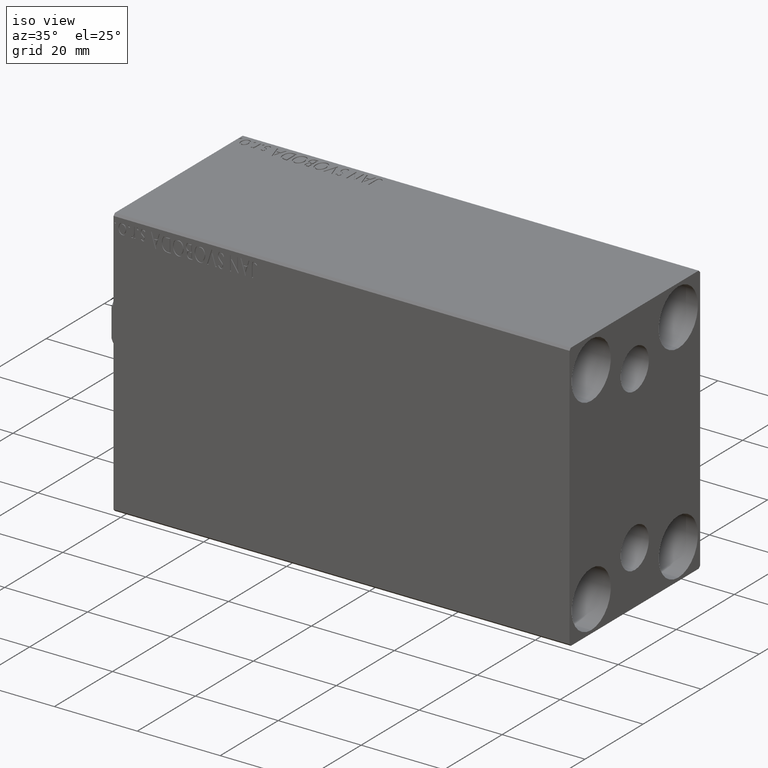
[diagram: clean part render]
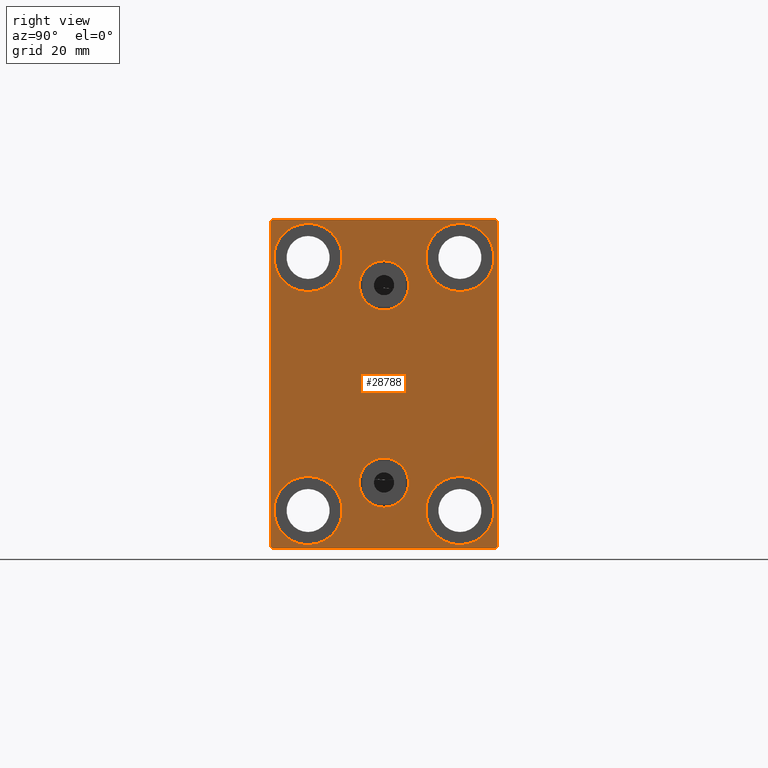
[diagram: tour spotlight — one face highlighted and labeled with its STEP entity id]
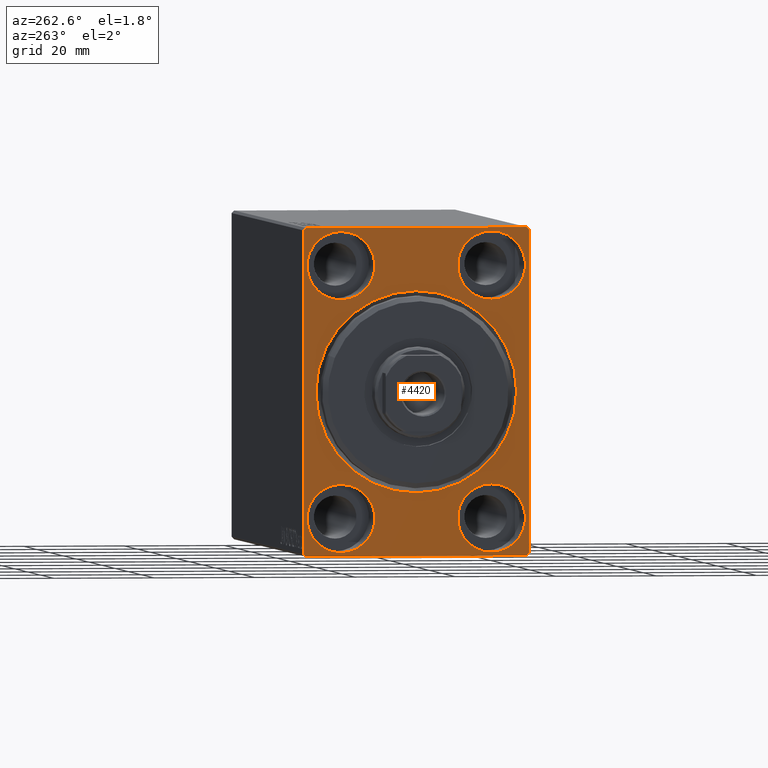
[diagram: tour spotlight — one face highlighted and labeled with its STEP entity id]
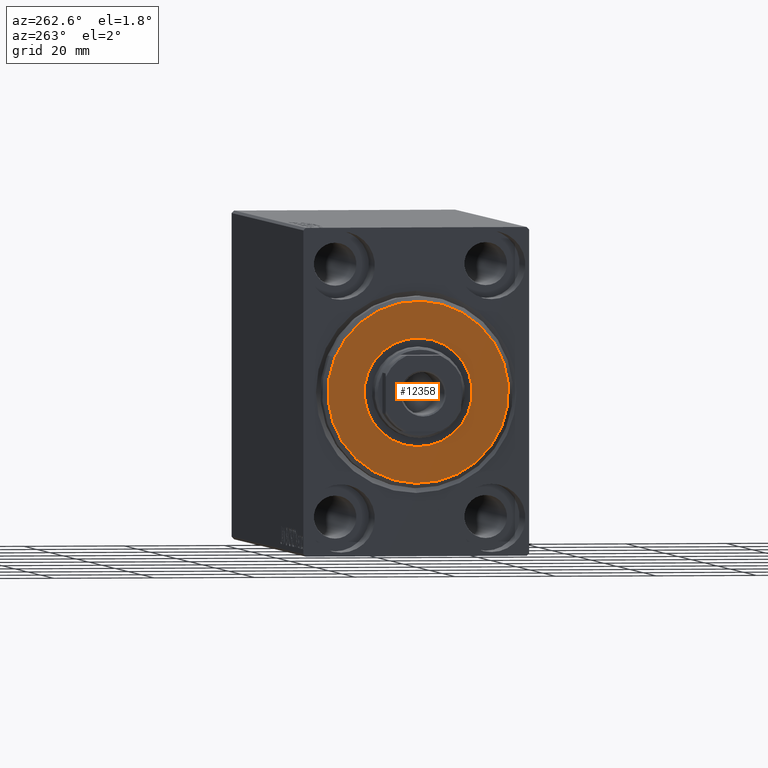
[diagram: tour spotlight — one face highlighted and labeled with its STEP entity id]
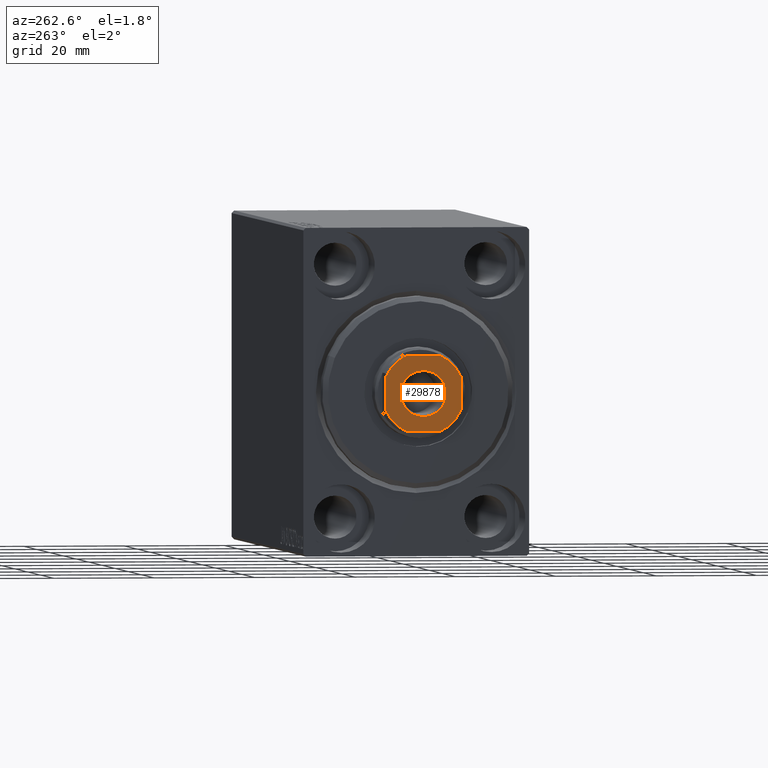
[diagram: tour spotlight — one face highlighted and labeled with its STEP entity id]
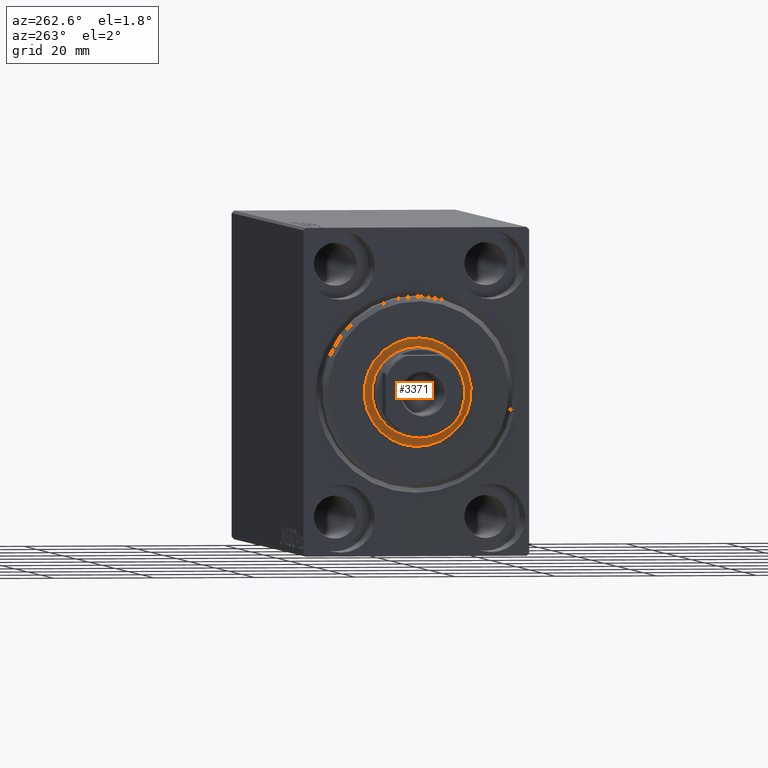
[diagram: tour spotlight — one face highlighted and labeled with its STEP entity id]
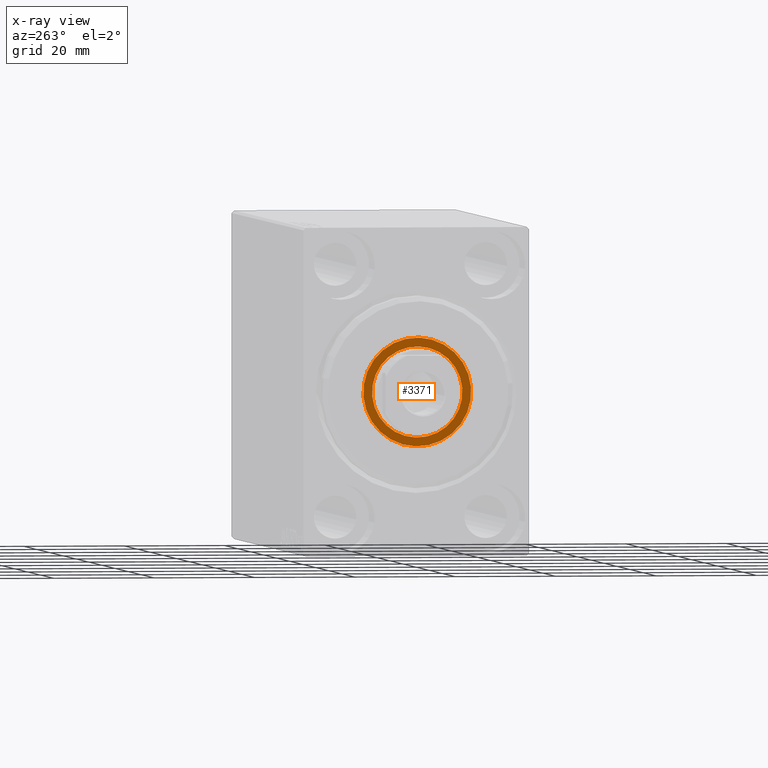
[diagram: x-ray of the same camera — body ghosted, this tour face saturated]
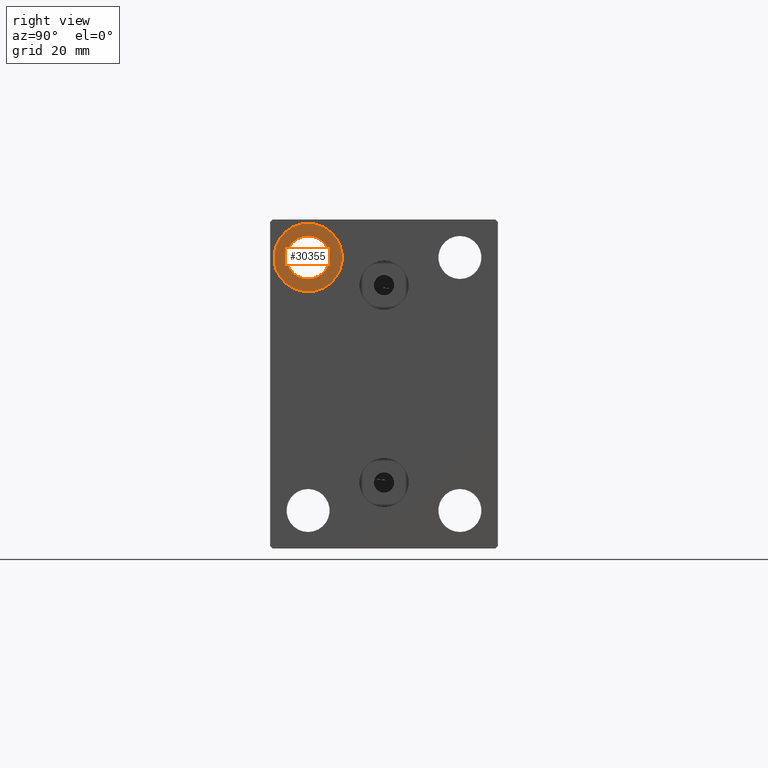
[diagram: tour spotlight — one face highlighted and labeled with its STEP entity id]
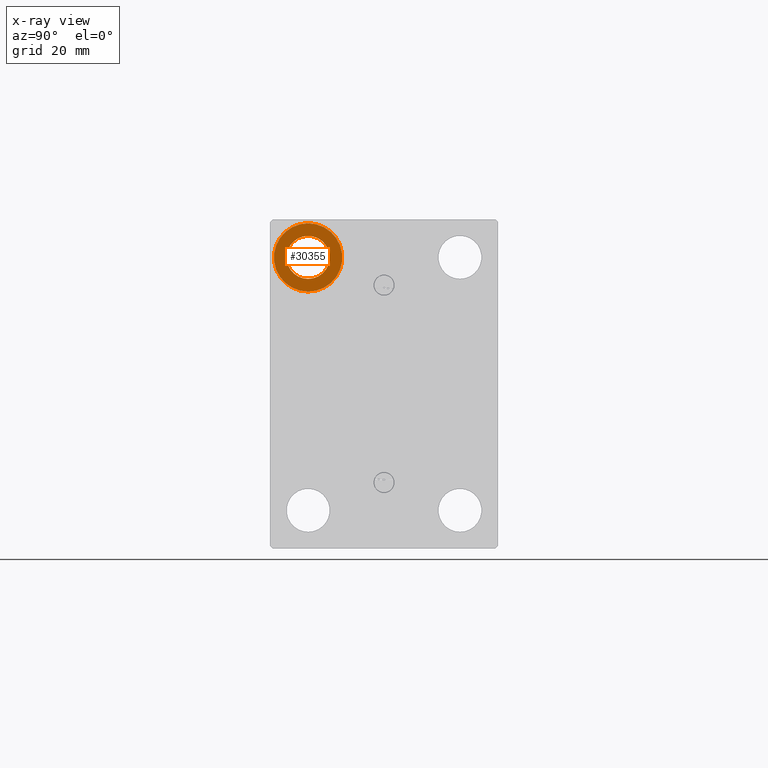
[diagram: x-ray of the same camera — body ghosted, this tour face saturated]
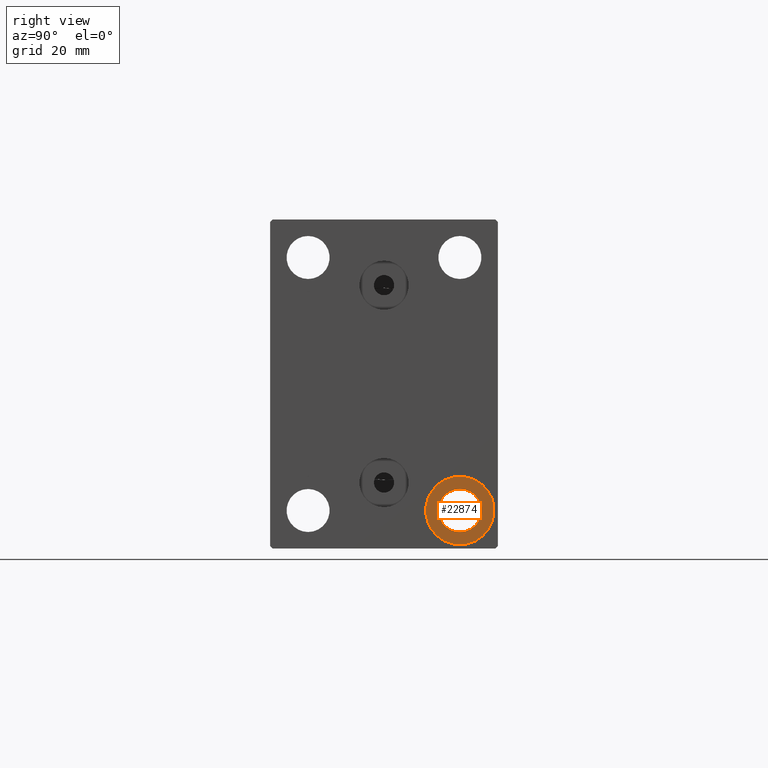
[diagram: tour spotlight — one face highlighted and labeled with its STEP entity id]
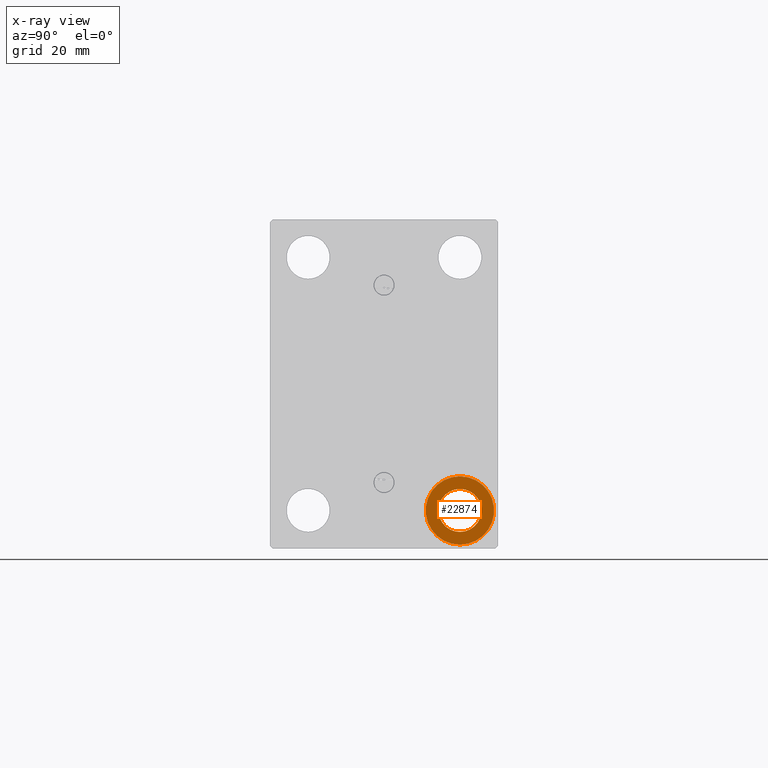
[diagram: x-ray of the same camera — body ghosted, this tour face saturated]
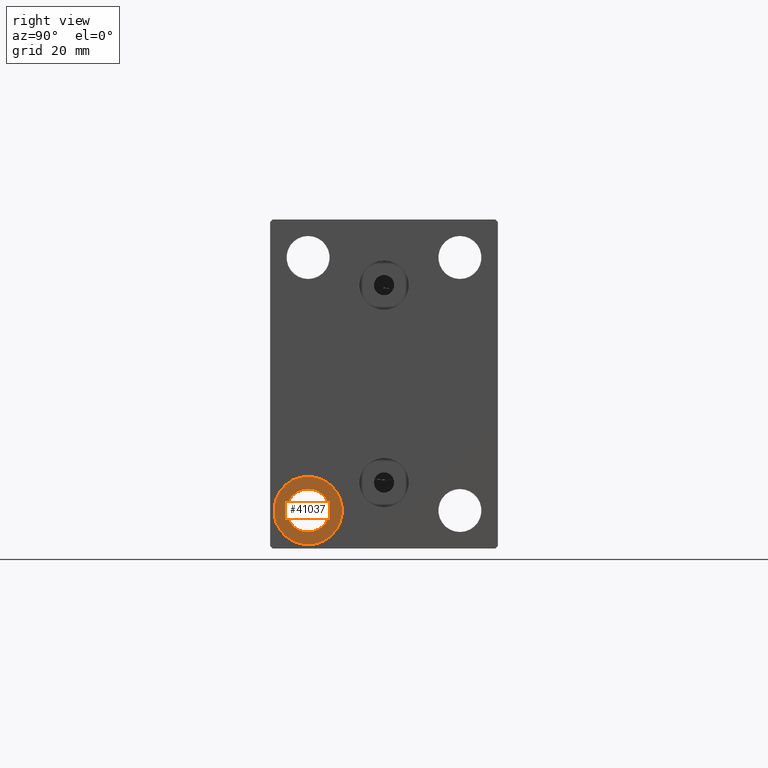
[diagram: tour spotlight — one face highlighted and labeled with its STEP entity id]
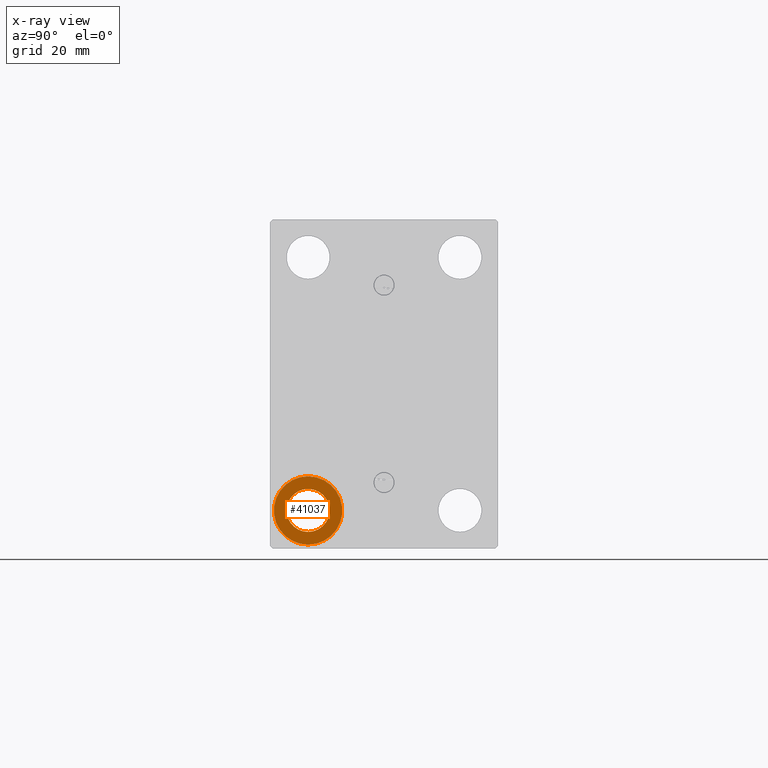
[diagram: x-ray of the same camera — body ghosted, this tour face saturated]
A machine part: a face-by-face anatomy tour. The part has 858 B-rep faces; the first image is the clean iso view, then the 8 largest visible faces are spotlighted one at a time (largest first), each with its STEP entity span.

Face 1 — right view, entity #28788. In plain terms, the highlighted planar face has unit normal (1, 0, 0).
Definition (entity closure, byte-faithful):
#179 = EDGE_CURVE ( 'NONE', #13886, #41045, #16171, .T. ) ;
#718 = DIRECTION ( 'NONE',  ( 0.000000000000000000, 0.000000000000000000, -1.000000000000000000 ) ) ;
#1053 = EDGE_CURVE ( 'NONE', #4341, #26198, #8343, .T. ) ;
#1087 = DIRECTION ( 'NONE',  ( 0.000000000000000000, 0.000000000000000000, 1.000000000000000000 ) ) ;
#1253 = DIRECTION ( 'NONE',  ( -1.000000000000000000, -0.000000000000000000, -0.000000000000000000 ) ) ;
#1498 = LINE ( 'NONE', #42019, #39127 ) ;
#1578 = CARTESIAN_POINT ( 'NONE',  ( 110.0000000000000000, -15.00000000000000355, -25.00000000000000000 ) ) ;
#2233 = ORIENTED_EDGE ( 'NONE', *, *, #3235, .T. ) ;
#2532 = AXIS2_PLACEMENT_3D ( 'NONE', #8242, #11344, #42325 ) ;
#2716 = VERTEX_POINT ( 'NONE', #25199 ) ;
#2901 = CARTESIAN_POINT ( 'NONE',  ( 110.0000000000000000, 22.49999999999999289, 32.50000000000000000 ) ) ;
#3041 = ORIENTED_EDGE ( 'NONE', *, *, #8362, .T. ) ;
#3235 = EDGE_CURVE ( 'NONE', #39916, #31932, #43702, .T. ) ;
#3444 = AXIS2_PLACEMENT_3D ( 'NONE', #29919, #15980, #19945 ) ;
#3506 = VECTOR ( 'NONE', #6507, 1000.000000000000000 ) ;
#3829 = CARTESIAN_POINT ( 'NONE',  ( 110.0000000000000000, 0.000000000000000000, 0.000000000000000000 ) ) ;
#4020 = CARTESIAN_POINT ( 'NONE',  ( 110.0000000000000000, -22.50000000000000711, 31.99999999999999289 ) ) ;
#4341 = VERTEX_POINT ( 'NONE', #4020 ) ;
#4627 = CARTESIAN_POINT ( 'NONE',  ( 110.0000000000000000, 14.99999999999999645, -25.00000000000000000 ) ) ;
#4947 = DIRECTION ( 'NONE',  ( 1.000000000000000000, 0.000000000000000000, 0.000000000000000000 ) ) ;
#5458 = DIRECTION ( 'NONE',  ( 0.000000000000000000, 0.000000000000000000, -1.000000000000000000 ) ) ;
#5578 = LINE ( 'NONE', #2901, #40480 ) ;
#5588 = CIRCLE ( 'NONE', #28241, 4.859999999999999432 ) ;
#6404 = AXIS2_PLACEMENT_3D ( 'NONE', #22225, #4947, #11603 ) ;
#6507 = DIRECTION ( 'NONE',  ( 0.000000000000000000, 1.000000000000000000, 0.000000000000000000 ) ) ;
#6833 = DIRECTION ( 'NONE',  ( 0.000000000000000000, 0.000000000000000000, 1.000000000000000000 ) ) ;
#6949 = CARTESIAN_POINT ( 'NONE',  ( 110.0000000000000000, -22.50000000000000711, -32.00000000000000711 ) ) ;
#7152 = FACE_OUTER_BOUND ( 'NONE', #26367, .T. ) ;
#7381 = CARTESIAN_POINT ( 'NONE',  ( 110.0000000000000000, 22.50000000000000000, -32.00000000000000711 ) ) ;
#7506 = CARTESIAN_POINT ( 'NONE',  ( 110.0000000000000000, -2.976515330312223406E-15, 24.36000000000000298 ) ) ;
#7862 = ORIENTED_EDGE ( 'NONE', *, *, #43320, .T. ) ;
#8140 = AXIS2_PLACEMENT_3D ( 'NONE', #18092, #1253, #25408 ) ;
#8242 = CARTESIAN_POINT ( 'NONE',  ( 110.0000000000000000, 15.00000000000000355, 25.00000000000000000 ) ) ;
#8343 = LINE ( 'NONE', #8790, #19008 ) ;
#8354 = CARTESIAN_POINT ( 'NONE',  ( 110.0000000000000000, -14.99999999999999645, 31.75000000000000000 ) ) ;
#8362 = EDGE_CURVE ( 'NONE', #41045, #13886, #11503, .T. ) ;
#8790 = CARTESIAN_POINT ( 'NONE',  ( 110.0000000000000000, -22.50000000000000711, 32.49999999999999289 ) ) ;
#8844 = CIRCLE ( 'NONE', #8140, 6.749999999999999112 ) ;
#9074 = EDGE_CURVE ( 'NONE', #15638, #25939, #5588, .T. ) ;
#9696 = EDGE_LOOP ( 'NONE', ( #43041, #7862 ) ) ;
#11283 = EDGE_LOOP ( 'NONE', ( #14876, #39007 ) ) ;
#11327 = ORIENTED_EDGE ( 'NONE', *, *, #19877, .T. ) ;
#11344 = DIRECTION ( 'NONE',  ( -1.000000000000000000, -0.000000000000000000, -0.000000000000000000 ) ) ;
#11350 = PLANE ( 'NONE',  #19265 ) ;
#11409 = LINE ( 'NONE', #14526, #34941 ) ;
#11503 = CIRCLE ( 'NONE', #36248, 6.749999999999999112 ) ;
#11603 = DIRECTION ( 'NONE',  ( 0.000000000000000000, 0.000000000000000000, -1.000000000000000000 ) ) ;
#11804 = AXIS2_PLACEMENT_3D ( 'NONE', #43014, #36802, #37020 ) ;
#11999 = CARTESIAN_POINT ( 'NONE',  ( 110.0000000000000000, 27.24999999999985079, 27.25000000000023093 ) ) ;
#12143 = CIRCLE ( 'NONE', #42539, 4.859999999999999432 ) ;
#12377 = DIRECTION ( 'NONE',  ( -1.000000000000000000, -0.000000000000000000, -0.000000000000000000 ) ) ;
#12927 = CARTESIAN_POINT ( 'NONE',  ( 110.0000000000000000, 22.00000000000000711, 32.50000000000000000 ) ) ;
#13349 = VERTEX_POINT ( 'NONE', #23571 ) ;
#13809 = FACE_BOUND ( 'NONE', #23588, .T. ) ;
#13813 = ORIENTED_EDGE ( 'NONE', *, *, #20424, .F. ) ;
#13886 = VERTEX_POINT ( 'NONE', #36525 ) ;
#14315 = CIRCLE ( 'NONE', #19963, 6.749999999999999112 ) ;
#14401 = DIRECTION ( 'NONE',  ( -1.000000000000000000, -0.000000000000000000, -0.000000000000000000 ) ) ;
#14526 = CARTESIAN_POINT ( 'NONE',  ( 110.0000000000000000, -27.25000000000000711, -27.25000000000000711 ) ) ;
#14751 = CARTESIAN_POINT ( 'NONE',  ( 110.0000000000000000, 2.388061258337338150E-15, -24.35999999999999588 ) ) ;
#14876 = ORIENTED_EDGE ( 'NONE', *, *, #21678, .T. ) ;
#14962 = CIRCLE ( 'NONE', #39690, 6.749999999999999112 ) ;
#15106 = DIRECTION ( 'NONE',  ( -1.000000000000000000, -0.000000000000000000, -0.000000000000000000 ) ) ;
#15332 = DIRECTION ( 'NONE',  ( -0.000000000000000000, -0.7071067811865525687, 0.7071067811865425767 ) ) ;
#15575 = EDGE_LOOP ( 'NONE', ( #3041, #34298 ) ) ;
#15638 = VERTEX_POINT ( 'NONE', #7506 ) ;
#15676 = EDGE_CURVE ( 'NONE', #31932, #38678, #31209, .T. ) ;
#15942 = ORIENTED_EDGE ( 'NONE', *, *, #35780, .T. ) ;
#15980 = DIRECTION ( 'NONE',  ( -1.000000000000000000, -0.000000000000000000, -0.000000000000000000 ) ) ;
#16006 = ORIENTED_EDGE ( 'NONE', *, *, #25893, .T. ) ;
#16171 = CIRCLE ( 'NONE', #3444, 6.749999999999999112 ) ;
#16201 = CARTESIAN_POINT ( 'NONE',  ( 110.0000000000000000, 22.49999999999999289, 32.00000000000002132 ) ) ;
#16768 = ORIENTED_EDGE ( 'NONE', *, *, #1053, .T. ) ;
#17302 = VECTOR ( 'NONE', #35741, 1000.000000000000000 ) ;
#17613 = VERTEX_POINT ( 'NONE', #31207 ) ;
#18092 = CARTESIAN_POINT ( 'NONE',  ( 110.0000000000000000, -15.00000000000000355, -25.00000000000000000 ) ) ;
#18490 = DIRECTION ( 'NONE',  ( -0.000000000000000000, 0.7071067811865474617, -0.7071067811865474617 ) ) ;
#18608 = EDGE_CURVE ( 'NONE', #25939, #15638, #24090, .T. ) ;
#19008 = VECTOR ( 'NONE', #5458, 1000.000000000000000 ) ;
#19265 = AXIS2_PLACEMENT_3D ( 'NONE', #3829, #27760, #718 ) ;
#19476 = ORIENTED_EDGE ( 'NONE', *, *, #24053, .T. ) ;
#19850 = CARTESIAN_POINT ( 'NONE',  ( 110.0000000000000000, 2.388061258337338150E-15, -19.49999999999999645 ) ) ;
#19877 = EDGE_CURVE ( 'NONE', #37457, #31425, #41890, .T. ) ;
#19945 = DIRECTION ( 'NONE',  ( 0.000000000000000000, 0.000000000000000000, 1.000000000000000000 ) ) ;
#19963 = AXIS2_PLACEMENT_3D ( 'NONE', #1578, #15106, #28615 ) ;
#20272 = CIRCLE ( 'NONE', #11804, 6.749999999999999112 ) ;
#20424 = EDGE_CURVE ( 'NONE', #17613, #30561, #21305, .T. ) ;
#20578 = CARTESIAN_POINT ( 'NONE',  ( 110.0000000000000000, 27.25000000000000355, -27.25000000000000355 ) ) ;
#21305 = CIRCLE ( 'NONE', #27665, 4.859999999999999432 ) ;
#21401 = EDGE_CURVE ( 'NONE', #30561, #17613, #12143, .T. ) ;
#21678 = EDGE_CURVE ( 'NONE', #41494, #31138, #14962, .T. ) ;
#22173 = ORIENTED_EDGE ( 'NONE', *, *, #21401, .F. ) ;
#22225 = CARTESIAN_POINT ( 'NONE',  ( 110.0000000000000000, -3.571693674697836683E-15, 19.50000000000000355 ) ) ;
#22228 = CARTESIAN_POINT ( 'NONE',  ( 110.0000000000000000, -3.571693674697836683E-15, 19.50000000000000355 ) ) ;
#22768 = DIRECTION ( 'NONE',  ( 0.000000000000000000, 0.000000000000000000, 1.000000000000000000 ) ) ;
#23324 = VECTOR ( 'NONE', #40727, 1000.000000000000114 ) ;
#23413 = ORIENTED_EDGE ( 'NONE', *, *, #35193, .T. ) ;
#23457 = CARTESIAN_POINT ( 'NONE',  ( 110.0000000000000000, 2.388061258337338150E-15, -19.49999999999999645 ) ) ;
#23571 = CARTESIAN_POINT ( 'NONE',  ( 110.0000000000000000, 15.00000000000000355, 18.25000000000000355 ) ) ;
#23588 = EDGE_LOOP ( 'NONE', ( #42490, #42719 ) ) ;
#24053 = EDGE_CURVE ( 'NONE', #31425, #28217, #5578, .T. ) ;
#24090 = CIRCLE ( 'NONE', #6404, 4.859999999999999432 ) ;
#24371 = CIRCLE ( 'NONE', #39217, 6.749999999999999112 ) ;
#24644 = FACE_BOUND ( 'NONE', #9696, .T. ) ;
#24948 = EDGE_LOOP ( 'NONE', ( #15942, #39431 ) ) ;
#25199 = CARTESIAN_POINT ( 'NONE',  ( 110.0000000000000000, -15.00000000000000355, -18.25000000000000355 ) ) ;
#25408 = DIRECTION ( 'NONE',  ( 0.000000000000000000, 0.000000000000000000, 1.000000000000000000 ) ) ;
#25654 = CARTESIAN_POINT ( 'NONE',  ( 110.0000000000000000, -3.571693674697836683E-15, 14.64000000000000412 ) ) ;
#25761 = DIRECTION ( 'NONE',  ( -1.000000000000000000, -0.000000000000000000, -0.000000000000000000 ) ) ;
#25893 = EDGE_CURVE ( 'NONE', #28217, #4341, #1498, .T. ) ;
#25910 = CIRCLE ( 'NONE', #2532, 6.749999999999999112 ) ;
#25939 = VERTEX_POINT ( 'NONE', #25654 ) ;
#26198 = VERTEX_POINT ( 'NONE', #6949 ) ;
#26322 = CARTESIAN_POINT ( 'NONE',  ( 110.0000000000000000, -14.99999999999999645, 25.00000000000000000 ) ) ;
#26367 = EDGE_LOOP ( 'NONE', ( #19476, #16006, #16768, #26623, #2233, #43112, #23413, #11327 ) ) ;
#26613 = DIRECTION ( 'NONE',  ( 0.000000000000000000, -1.000000000000000000, -1.541976423090495387E-16 ) ) ;
#26623 = ORIENTED_EDGE ( 'NONE', *, *, #32964, .T. ) ;
#27665 = AXIS2_PLACEMENT_3D ( 'NONE', #19850, #37107, #43322 ) ;
#27760 = DIRECTION ( 'NONE',  ( 1.000000000000000000, 0.000000000000000000, 0.000000000000000000 ) ) ;
#27792 = VERTEX_POINT ( 'NONE', #30893 ) ;
#28192 = FACE_BOUND ( 'NONE', #15575, .T. ) ;
#28217 = VERTEX_POINT ( 'NONE', #34581 ) ;
#28241 = AXIS2_PLACEMENT_3D ( 'NONE', #22228, #33061, #36595 ) ;
#28291 = EDGE_CURVE ( 'NONE', #2716, #29848, #14315, .T. ) ;
#28604 = CARTESIAN_POINT ( 'NONE',  ( 110.0000000000000000, 14.99999999999999645, -31.75000000000000000 ) ) ;
#28615 = DIRECTION ( 'NONE',  ( 0.000000000000000000, 0.000000000000000000, 1.000000000000000000 ) ) ;
#28752 = DIRECTION ( 'NONE',  ( 0.000000000000000000, -0.7071067811865474617, -0.7071067811865474617 ) ) ;
#28788 = ADVANCED_FACE ( 'NONE', ( #13809, #37703, #28192, #34171, #24644, #37481, #7152 ), #11350, .T. ) ;
#28807 = CARTESIAN_POINT ( 'NONE',  ( 110.0000000000000000, -22.00000000000000711, -32.50000000000000711 ) ) ;
#28859 = CARTESIAN_POINT ( 'NONE',  ( 110.0000000000000000, -14.99999999999999645, 25.00000000000000000 ) ) ;
#29848 = VERTEX_POINT ( 'NONE', #32177 ) ;
#29919 = CARTESIAN_POINT ( 'NONE',  ( 110.0000000000000000, 14.99999999999999645, -25.00000000000000000 ) ) ;
#30561 = VERTEX_POINT ( 'NONE', #14751 ) ;
#30893 = CARTESIAN_POINT ( 'NONE',  ( 110.0000000000000000, 15.00000000000000355, 31.75000000000000000 ) ) ;
#31138 = VERTEX_POINT ( 'NONE', #8354 ) ;
#31207 = CARTESIAN_POINT ( 'NONE',  ( 110.0000000000000000, 2.983239602722951428E-15, -14.63999999999999702 ) ) ;
#31209 = LINE ( 'NONE', #20578, #23324 ) ;
#31425 = VERTEX_POINT ( 'NONE', #12927 ) ;
#31932 = VERTEX_POINT ( 'NONE', #43370 ) ;
#32177 = CARTESIAN_POINT ( 'NONE',  ( 110.0000000000000000, -15.00000000000000355, -31.75000000000000000 ) ) ;
#32964 = EDGE_CURVE ( 'NONE', #26198, #39916, #11409, .T. ) ;
#33061 = DIRECTION ( 'NONE',  ( 1.000000000000000000, 0.000000000000000000, 0.000000000000000000 ) ) ;
#34171 = FACE_BOUND ( 'NONE', #11283, .T. ) ;
#34298 = ORIENTED_EDGE ( 'NONE', *, *, #179, .T. ) ;
#34581 = CARTESIAN_POINT ( 'NONE',  ( 110.0000000000000000, -21.99999999999999289, 32.49999999999999289 ) ) ;
#34688 = EDGE_CURVE ( 'NONE', #31138, #41494, #24371, .T. ) ;
#34941 = VECTOR ( 'NONE', #18490, 1000.000000000000114 ) ;
#35193 = EDGE_CURVE ( 'NONE', #38678, #37457, #36170, .T. ) ;
#35741 = DIRECTION ( 'NONE',  ( 0.000000000000000000, -1.067522139062650425E-16, 1.000000000000000000 ) ) ;
#35780 = EDGE_CURVE ( 'NONE', #29848, #2716, #8844, .T. ) ;
#36170 = LINE ( 'NONE', #36600, #17302 ) ;
#36248 = AXIS2_PLACEMENT_3D ( 'NONE', #4627, #14401, #1087 ) ;
#36525 = CARTESIAN_POINT ( 'NONE',  ( 110.0000000000000000, 14.99999999999999645, -18.25000000000000355 ) ) ;
#36595 = DIRECTION ( 'NONE',  ( 0.000000000000000000, 0.000000000000000000, -1.000000000000000000 ) ) ;
#36600 = CARTESIAN_POINT ( 'NONE',  ( 110.0000000000000000, 22.50000000000000000, -32.50000000000000711 ) ) ;
#36802 = DIRECTION ( 'NONE',  ( -1.000000000000000000, -0.000000000000000000, -0.000000000000000000 ) ) ;
#36837 = CARTESIAN_POINT ( 'NONE',  ( 110.0000000000000000, -22.50000000000000711, -32.50000000000000711 ) ) ;
#37020 = DIRECTION ( 'NONE',  ( 0.000000000000000000, 0.000000000000000000, 1.000000000000000000 ) ) ;
#37107 = DIRECTION ( 'NONE',  ( 1.000000000000000000, 0.000000000000000000, -0.000000000000000000 ) ) ;
#37457 = VERTEX_POINT ( 'NONE', #16201 ) ;
#37481 = FACE_BOUND ( 'NONE', #24948, .T. ) ;
#37703 = FACE_BOUND ( 'NONE', #38062, .T. ) ;
#38062 = EDGE_LOOP ( 'NONE', ( #22173, #13813 ) ) ;
#38257 = VECTOR ( 'NONE', #15332, 999.9999999999998863 ) ;
#38678 = VERTEX_POINT ( 'NONE', #7381 ) ;
#39007 = ORIENTED_EDGE ( 'NONE', *, *, #34688, .T. ) ;
#39127 = VECTOR ( 'NONE', #28752, 1000.000000000000114 ) ;
#39217 = AXIS2_PLACEMENT_3D ( 'NONE', #26322, #12377, #22768 ) ;
#39251 = DIRECTION ( 'NONE',  ( 0.000000000000000000, 0.000000000000000000, 1.000000000000000000 ) ) ;
#39431 = ORIENTED_EDGE ( 'NONE', *, *, #28291, .T. ) ;
#39690 = AXIS2_PLACEMENT_3D ( 'NONE', #28859, #25761, #39251 ) ;
#39916 = VERTEX_POINT ( 'NONE', #28807 ) ;
#40480 = VECTOR ( 'NONE', #26613, 1000.000000000000000 ) ;
#40727 = DIRECTION ( 'NONE',  ( -0.000000000000000000, 0.7071067811865474617, 0.7071067811865474617 ) ) ;
#40797 = EDGE_CURVE ( 'NONE', #13349, #27792, #20272, .T. ) ;
#41045 = VERTEX_POINT ( 'NONE', #28604 ) ;
#41494 = VERTEX_POINT ( 'NONE', #42314 ) ;
#41532 = DIRECTION ( 'NONE',  ( 1.000000000000000000, 0.000000000000000000, -0.000000000000000000 ) ) ;
#41890 = LINE ( 'NONE', #11999, #38257 ) ;
#42019 = CARTESIAN_POINT ( 'NONE',  ( 110.0000000000000000, -27.25000000000000000, 27.25000000000000000 ) ) ;
#42314 = CARTESIAN_POINT ( 'NONE',  ( 110.0000000000000000, -14.99999999999999645, 18.25000000000000355 ) ) ;
#42325 = DIRECTION ( 'NONE',  ( 0.000000000000000000, 0.000000000000000000, 1.000000000000000000 ) ) ;
#42490 = ORIENTED_EDGE ( 'NONE', *, *, #18608, .F. ) ;
#42539 = AXIS2_PLACEMENT_3D ( 'NONE', #23457, #41532, #6833 ) ;
#42719 = ORIENTED_EDGE ( 'NONE', *, *, #9074, .F. ) ;
#43014 = CARTESIAN_POINT ( 'NONE',  ( 110.0000000000000000, 15.00000000000000355, 25.00000000000000000 ) ) ;
#43041 = ORIENTED_EDGE ( 'NONE', *, *, #40797, .T. ) ;
#43112 = ORIENTED_EDGE ( 'NONE', *, *, #15676, .T. ) ;
#43320 = EDGE_CURVE ( 'NONE', #27792, #13349, #25910, .T. ) ;
#43322 = DIRECTION ( 'NONE',  ( 0.000000000000000000, 0.000000000000000000, 1.000000000000000000 ) ) ;
#43370 = CARTESIAN_POINT ( 'NONE',  ( 110.0000000000000000, 21.99999999999998579, -32.50000000000000711 ) ) ;
#43702 = LINE ( 'NONE', #36837, #3506 ) ;

Face 2 — auxiliary view, entity #4420. In plain terms, the highlighted planar face has unit normal (1, 0, 0).
Definition (entity closure, byte-faithful):
#468 = EDGE_CURVE ( 'NONE', #42353, #20389, #30300, .T. ) ;
#675 = VECTOR ( 'NONE', #11055, 1000.000000000000000 ) ;
#694 = CIRCLE ( 'NONE', #4236, 6.749999999999999112 ) ;
#701 = DIRECTION ( 'NONE',  ( 0.000000000000000000, 0.000000000000000000, 1.000000000000000000 ) ) ;
#798 = CIRCLE ( 'NONE', #26996, 6.749999999999999112 ) ;
#1173 = VECTOR ( 'NONE', #1619, 999.9999999999998863 ) ;
#1308 = CARTESIAN_POINT ( 'NONE',  ( 0.000000000000000000, -21.99999999999999289, 32.49999999999999289 ) ) ;
#1355 = ORIENTED_EDGE ( 'NONE', *, *, #40723, .T. ) ;
#1619 = DIRECTION ( 'NONE',  ( -0.000000000000000000, 0.7071067811865525687, -0.7071067811865425767 ) ) ;
#1911 = CIRCLE ( 'NONE', #8297, 6.749999999999999112 ) ;
#2155 = VECTOR ( 'NONE', #15041, 1000.000000000000000 ) ;
#2642 = ORIENTED_EDGE ( 'NONE', *, *, #2895, .F. ) ;
#2663 = EDGE_LOOP ( 'NONE', ( #2642, #28908 ) ) ;
#2717 = CARTESIAN_POINT ( 'NONE',  ( 0.000000000000000000, 14.99999999999999645, -18.25000000000000355 ) ) ;
#2895 = EDGE_CURVE ( 'NONE', #19713, #27182, #26859, .T. ) ;
#3073 = VECTOR ( 'NONE', #5077, 1000.000000000000000 ) ;
#3218 = CARTESIAN_POINT ( 'NONE',  ( 0.000000000000000000, 15.00000000000000355, 31.75000000000000000 ) ) ;
#4185 = CARTESIAN_POINT ( 'NONE',  ( 0.000000000000000000, -14.99999999999999645, 18.25000000000000355 ) ) ;
#4236 = AXIS2_PLACEMENT_3D ( 'NONE', #31047, #37453, #20633 ) ;
#4251 = EDGE_CURVE ( 'NONE', #4738, #20671, #694, .T. ) ;
#4400 = AXIS2_PLACEMENT_3D ( 'NONE', #27519, #6479, #40790 ) ;
#4420 = ADVANCED_FACE ( 'NONE', ( #18187, #17750, #35012, #8439, #38551, #7562 ), #18404, .F. ) ;
#4697 = EDGE_CURVE ( 'NONE', #42353, #17753, #28115, .T. ) ;
#4738 = VERTEX_POINT ( 'NONE', #39539 ) ;
#4852 = CARTESIAN_POINT ( 'NONE',  ( 0.000000000000000000, 22.50000000000000000, -32.50000000000000711 ) ) ;
#4916 = AXIS2_PLACEMENT_3D ( 'NONE', #23368, #20256, #17372 ) ;
#5077 = DIRECTION ( 'NONE',  ( 0.000000000000000000, -1.067522139062650425E-16, 1.000000000000000000 ) ) ;
#5474 = CARTESIAN_POINT ( 'NONE',  ( 0.000000000000000000, 14.99999999999999645, -25.00000000000000000 ) ) ;
#6232 = CARTESIAN_POINT ( 'NONE',  ( 0.000000000000000000, -14.99999999999999645, 31.75000000000000000 ) ) ;
#6479 = DIRECTION ( 'NONE',  ( -1.000000000000000000, 0.000000000000000000, 0.000000000000000000 ) ) ;
#6857 = ORIENTED_EDGE ( 'NONE', *, *, #15715, .F. ) ;
#6943 = VERTEX_POINT ( 'NONE', #39583 ) ;
#7317 = AXIS2_PLACEMENT_3D ( 'NONE', #16626, #13309, #23497 ) ;
#7355 = DIRECTION ( 'NONE',  ( -1.000000000000000000, 0.000000000000000000, 0.000000000000000000 ) ) ;
#7393 = CARTESIAN_POINT ( 'NONE',  ( 0.000000000000000000, 14.99999999999999645, -31.75000000000000000 ) ) ;
#7562 = FACE_OUTER_BOUND ( 'NONE', #15284, .T. ) ;
#8218 = DIRECTION ( 'NONE',  ( 1.000000000000000000, 0.000000000000000000, 0.000000000000000000 ) ) ;
#8297 = AXIS2_PLACEMENT_3D ( 'NONE', #19619, #13636, #43311 ) ;
#8439 = FACE_BOUND ( 'NONE', #19488, .T. ) ;
#10145 = DIRECTION ( 'NONE',  ( -0.000000000000000000, -0.7071067811865474617, 0.7071067811865474617 ) ) ;
#10612 = AXIS2_PLACEMENT_3D ( 'NONE', #14979, #42412, #11203 ) ;
#10766 = CIRCLE ( 'NONE', #4400, 6.749999999999999112 ) ;
#10974 = ORIENTED_EDGE ( 'NONE', *, *, #31643, .F. ) ;
#11055 = DIRECTION ( 'NONE',  ( 0.000000000000000000, -1.000000000000000000, -1.541976423090495387E-16 ) ) ;
#11203 = DIRECTION ( 'NONE',  ( 0.000000000000000000, 0.000000000000000000, -1.000000000000000000 ) ) ;
#11248 = VERTEX_POINT ( 'NONE', #37475 ) ;
#11323 = CARTESIAN_POINT ( 'NONE',  ( 0.000000000000000000, 0.000000000000000000, 0.000000000000000000 ) ) ;
#11561 = CIRCLE ( 'NONE', #7317, 6.749999999999999112 ) ;
#11701 = LINE ( 'NONE', #11925, #675 ) ;
#11925 = CARTESIAN_POINT ( 'NONE',  ( 0.000000000000000000, 22.49999999999999289, 32.50000000000000000 ) ) ;
#12438 = ORIENTED_EDGE ( 'NONE', *, *, #31836, .F. ) ;
#13309 = DIRECTION ( 'NONE',  ( -1.000000000000000000, 0.000000000000000000, 0.000000000000000000 ) ) ;
#13371 = DIRECTION ( 'NONE',  ( -1.000000000000000000, 0.000000000000000000, 0.000000000000000000 ) ) ;
#13393 = CARTESIAN_POINT ( 'NONE',  ( 0.000000000000000000, -22.50000000000000711, 31.99999999999999289 ) ) ;
#13636 = DIRECTION ( 'NONE',  ( -1.000000000000000000, 0.000000000000000000, 0.000000000000000000 ) ) ;
#13897 = CIRCLE ( 'NONE', #23093, 20.00000000000000355 ) ;
#14126 = CARTESIAN_POINT ( 'NONE',  ( 0.000000000000000000, -22.00000000000000711, -32.50000000000000711 ) ) ;
#14422 = VERTEX_POINT ( 'NONE', #40987 ) ;
#14979 = CARTESIAN_POINT ( 'NONE',  ( 0.000000000000000000, 0.000000000000000000, 0.000000000000000000 ) ) ;
#15041 = DIRECTION ( 'NONE',  ( 0.000000000000000000, 1.000000000000000000, 0.000000000000000000 ) ) ;
#15069 = EDGE_CURVE ( 'NONE', #15429, #17753, #21563, .T. ) ;
#15284 = EDGE_LOOP ( 'NONE', ( #17308, #23271, #6857, #1355, #12438, #36951, #29154, #23151 ) ) ;
#15333 = AXIS2_PLACEMENT_3D ( 'NONE', #31054, #7355, #701 ) ;
#15429 = VERTEX_POINT ( 'NONE', #28600 ) ;
#15675 = DIRECTION ( 'NONE',  ( -1.000000000000000000, 0.000000000000000000, 0.000000000000000000 ) ) ;
#15715 = EDGE_CURVE ( 'NONE', #6943, #36433, #11701, .T. ) ;
#16215 = EDGE_CURVE ( 'NONE', #26619, #32187, #20470, .T. ) ;
#16224 = ORIENTED_EDGE ( 'NONE', *, *, #16215, .F. ) ;
#16312 = CARTESIAN_POINT ( 'NONE',  ( 0.000000000000000000, 2.449293598294706907E-15, -20.00000000000000355 ) ) ;
#16547 = DIRECTION ( 'NONE',  ( 0.000000000000000000, 0.000000000000000000, -1.000000000000000000 ) ) ;
#16626 = CARTESIAN_POINT ( 'NONE',  ( 0.000000000000000000, -15.00000000000000355, -25.00000000000000000 ) ) ;
#17095 = EDGE_CURVE ( 'NONE', #11248, #37700, #32550, .T. ) ;
#17308 = ORIENTED_EDGE ( 'NONE', *, *, #20762, .F. ) ;
#17372 = DIRECTION ( 'NONE',  ( 0.000000000000000000, 0.000000000000000000, 1.000000000000000000 ) ) ;
#17740 = EDGE_LOOP ( 'NONE', ( #22821, #10974 ) ) ;
#17750 = FACE_BOUND ( 'NONE', #2663, .T. ) ;
#17753 = VERTEX_POINT ( 'NONE', #21454 ) ;
#18187 = FACE_BOUND ( 'NONE', #36409, .T. ) ;
#18404 = PLANE ( 'NONE',  #43156 ) ;
#18453 = CARTESIAN_POINT ( 'NONE',  ( 0.000000000000000000, 22.50000000000000000, -32.00000000000000711 ) ) ;
#18475 = CARTESIAN_POINT ( 'NONE',  ( 0.000000000000000000, -22.00000000000000711, -32.50000000000000711 ) ) ;
#18711 = CARTESIAN_POINT ( 'NONE',  ( 0.000000000000000000, -15.00000000000000355, -31.75000000000000000 ) ) ;
#18770 = ORIENTED_EDGE ( 'NONE', *, *, #41351, .F. ) ;
#19112 = CARTESIAN_POINT ( 'NONE',  ( 0.000000000000000000, 22.00000000000000711, 32.50000000000000000 ) ) ;
#19361 = CARTESIAN_POINT ( 'NONE',  ( 0.000000000000000000, -22.50000000000000711, 32.49999999999999289 ) ) ;
#19488 = EDGE_LOOP ( 'NONE', ( #18770, #16224 ) ) ;
#19619 = CARTESIAN_POINT ( 'NONE',  ( 0.000000000000000000, -14.99999999999999645, 25.00000000000000000 ) ) ;
#19713 = VERTEX_POINT ( 'NONE', #2717 ) ;
#20256 = DIRECTION ( 'NONE',  ( -1.000000000000000000, 0.000000000000000000, 0.000000000000000000 ) ) ;
#20389 = VERTEX_POINT ( 'NONE', #23178 ) ;
#20470 = CIRCLE ( 'NONE', #4916, 6.749999999999999112 ) ;
#20633 = DIRECTION ( 'NONE',  ( 0.000000000000000000, 0.000000000000000000, 1.000000000000000000 ) ) ;
#20671 = VERTEX_POINT ( 'NONE', #18711 ) ;
#20739 = EDGE_CURVE ( 'NONE', #27182, #19713, #798, .T. ) ;
#20762 = EDGE_CURVE ( 'NONE', #14422, #20389, #33741, .T. ) ;
#21078 = VERTEX_POINT ( 'NONE', #6232 ) ;
#21454 = CARTESIAN_POINT ( 'NONE',  ( 0.000000000000000000, 21.99999999999998579, -32.50000000000000711 ) ) ;
#21563 = LINE ( 'NONE', #18453, #31072 ) ;
#22056 = ORIENTED_EDGE ( 'NONE', *, *, #42950, .F. ) ;
#22402 = CIRCLE ( 'NONE', #15333, 6.749999999999999112 ) ;
#22686 = DIRECTION ( 'NONE',  ( 0.000000000000000000, 0.000000000000000000, -1.000000000000000000 ) ) ;
#22706 = LINE ( 'NONE', #13393, #25246 ) ;
#22821 = ORIENTED_EDGE ( 'NONE', *, *, #4251, .F. ) ;
#23093 = AXIS2_PLACEMENT_3D ( 'NONE', #40444, #26310, #16547 ) ;
#23151 = ORIENTED_EDGE ( 'NONE', *, *, #468, .T. ) ;
#23178 = CARTESIAN_POINT ( 'NONE',  ( 0.000000000000000000, -22.50000000000000711, -32.00000000000000711 ) ) ;
#23271 = ORIENTED_EDGE ( 'NONE', *, *, #40497, .T. ) ;
#23368 = CARTESIAN_POINT ( 'NONE',  ( 0.000000000000000000, 15.00000000000000355, 25.00000000000000000 ) ) ;
#23497 = DIRECTION ( 'NONE',  ( 0.000000000000000000, 0.000000000000000000, 1.000000000000000000 ) ) ;
#24824 = ORIENTED_EDGE ( 'NONE', *, *, #28157, .F. ) ;
#25246 = VECTOR ( 'NONE', #36854, 1000.000000000000114 ) ;
#26040 = EDGE_LOOP ( 'NONE', ( #22056, #24824 ) ) ;
#26310 = DIRECTION ( 'NONE',  ( 1.000000000000000000, 0.000000000000000000, 0.000000000000000000 ) ) ;
#26619 = VERTEX_POINT ( 'NONE', #39149 ) ;
#26859 = CIRCLE ( 'NONE', #36730, 6.749999999999999112 ) ;
#26965 = ORIENTED_EDGE ( 'NONE', *, *, #40251, .T. ) ;
#26996 = AXIS2_PLACEMENT_3D ( 'NONE', #43269, #13371, #30207 ) ;
#27182 = VERTEX_POINT ( 'NONE', #7393 ) ;
#27519 = CARTESIAN_POINT ( 'NONE',  ( 0.000000000000000000, -14.99999999999999645, 25.00000000000000000 ) ) ;
#28115 = LINE ( 'NONE', #41601, #2155 ) ;
#28157 = EDGE_CURVE ( 'NONE', #34565, #21078, #10766, .T. ) ;
#28393 = DIRECTION ( 'NONE',  ( 0.000000000000000000, 0.000000000000000000, -1.000000000000000000 ) ) ;
#28600 = CARTESIAN_POINT ( 'NONE',  ( 0.000000000000000000, 22.50000000000000000, -32.00000000000000711 ) ) ;
#28908 = ORIENTED_EDGE ( 'NONE', *, *, #20739, .F. ) ;
#29154 = ORIENTED_EDGE ( 'NONE', *, *, #4697, .F. ) ;
#29180 = DIRECTION ( 'NONE',  ( 0.000000000000000000, 0.000000000000000000, 1.000000000000000000 ) ) ;
#30207 = DIRECTION ( 'NONE',  ( 0.000000000000000000, 0.000000000000000000, 1.000000000000000000 ) ) ;
#30300 = LINE ( 'NONE', #14126, #33866 ) ;
#30380 = ORIENTED_EDGE ( 'NONE', *, *, #17095, .T. ) ;
#31047 = CARTESIAN_POINT ( 'NONE',  ( 0.000000000000000000, -15.00000000000000355, -25.00000000000000000 ) ) ;
#31054 = CARTESIAN_POINT ( 'NONE',  ( 0.000000000000000000, 15.00000000000000355, 25.00000000000000000 ) ) ;
#31072 = VECTOR ( 'NONE', #32615, 1000.000000000000114 ) ;
#31643 = EDGE_CURVE ( 'NONE', #20671, #4738, #11561, .T. ) ;
#31836 = EDGE_CURVE ( 'NONE', #15429, #34957, #42497, .T. ) ;
#32187 = VERTEX_POINT ( 'NONE', #3218 ) ;
#32550 = CIRCLE ( 'NONE', #10612, 20.00000000000000355 ) ;
#32615 = DIRECTION ( 'NONE',  ( 0.000000000000000000, -0.7071067811865474617, -0.7071067811865474617 ) ) ;
#33119 = CARTESIAN_POINT ( 'NONE',  ( 0.000000000000000000, 22.49999999999999289, 32.00000000000002132 ) ) ;
#33741 = LINE ( 'NONE', #19361, #41110 ) ;
#33866 = VECTOR ( 'NONE', #10145, 1000.000000000000114 ) ;
#34565 = VERTEX_POINT ( 'NONE', #4185 ) ;
#34957 = VERTEX_POINT ( 'NONE', #33119 ) ;
#35012 = FACE_BOUND ( 'NONE', #26040, .T. ) ;
#36409 = EDGE_LOOP ( 'NONE', ( #30380, #26965 ) ) ;
#36433 = VERTEX_POINT ( 'NONE', #1308 ) ;
#36730 = AXIS2_PLACEMENT_3D ( 'NONE', #5474, #15675, #29180 ) ;
#36854 = DIRECTION ( 'NONE',  ( -0.000000000000000000, 0.7071067811865474617, 0.7071067811865474617 ) ) ;
#36951 = ORIENTED_EDGE ( 'NONE', *, *, #15069, .T. ) ;
#37453 = DIRECTION ( 'NONE',  ( -1.000000000000000000, 0.000000000000000000, 0.000000000000000000 ) ) ;
#37475 = CARTESIAN_POINT ( 'NONE',  ( 0.000000000000000000, 0.000000000000000000, 20.00000000000000355 ) ) ;
#37700 = VERTEX_POINT ( 'NONE', #16312 ) ;
#38551 = FACE_BOUND ( 'NONE', #17740, .T. ) ;
#38605 = LINE ( 'NONE', #19112, #1173 ) ;
#39149 = CARTESIAN_POINT ( 'NONE',  ( 0.000000000000000000, 15.00000000000000355, 18.25000000000000355 ) ) ;
#39539 = CARTESIAN_POINT ( 'NONE',  ( 0.000000000000000000, -15.00000000000000355, -18.25000000000000355 ) ) ;
#39583 = CARTESIAN_POINT ( 'NONE',  ( 0.000000000000000000, 22.00000000000000711, 32.50000000000000000 ) ) ;
#40251 = EDGE_CURVE ( 'NONE', #37700, #11248, #13897, .T. ) ;
#40444 = CARTESIAN_POINT ( 'NONE',  ( 0.000000000000000000, 0.000000000000000000, 0.000000000000000000 ) ) ;
#40497 = EDGE_CURVE ( 'NONE', #14422, #36433, #22706, .T. ) ;
#40723 = EDGE_CURVE ( 'NONE', #6943, #34957, #38605, .T. ) ;
#40790 = DIRECTION ( 'NONE',  ( 0.000000000000000000, 0.000000000000000000, 1.000000000000000000 ) ) ;
#40987 = CARTESIAN_POINT ( 'NONE',  ( 0.000000000000000000, -22.50000000000000711, 31.99999999999999289 ) ) ;
#41110 = VECTOR ( 'NONE', #22686, 1000.000000000000000 ) ;
#41351 = EDGE_CURVE ( 'NONE', #32187, #26619, #22402, .T. ) ;
#41601 = CARTESIAN_POINT ( 'NONE',  ( 0.000000000000000000, -22.50000000000000711, -32.50000000000000711 ) ) ;
#42353 = VERTEX_POINT ( 'NONE', #18475 ) ;
#42412 = DIRECTION ( 'NONE',  ( 1.000000000000000000, 0.000000000000000000, 0.000000000000000000 ) ) ;
#42497 = LINE ( 'NONE', #4852, #3073 ) ;
#42950 = EDGE_CURVE ( 'NONE', #21078, #34565, #1911, .T. ) ;
#43156 = AXIS2_PLACEMENT_3D ( 'NONE', #11323, #8218, #28393 ) ;
#43269 = CARTESIAN_POINT ( 'NONE',  ( 0.000000000000000000, 14.99999999999999645, -25.00000000000000000 ) ) ;
#43311 = DIRECTION ( 'NONE',  ( 0.000000000000000000, 0.000000000000000000, 1.000000000000000000 ) ) ;

Face 3 — auxiliary view, entity #12358. In plain terms, the highlighted planar face has unit normal (-1, 0, 0).
Definition (entity closure, byte-faithful):
#199 = EDGE_CURVE ( 'NONE', #2172, #26675, #34553, .T. ) ;
#2172 = VERTEX_POINT ( 'NONE', #21810 ) ;
#4141 = AXIS2_PLACEMENT_3D ( 'NONE', #19072, #6000, #19291 ) ;
#5341 = ORIENTED_EDGE ( 'NONE', *, *, #40532, .T. ) ;
#5829 = EDGE_CURVE ( 'NONE', #37326, #42370, #34679, .T. ) ;
#6000 = DIRECTION ( 'NONE',  ( 1.000000000000000000, -0.000000000000000000, 0.000000000000000000 ) ) ;
#7872 = PLANE ( 'NONE',  #14038 ) ;
#8567 = DIRECTION ( 'NONE',  ( -1.000000000000000000, 0.000000000000000000, -0.000000000000000000 ) ) ;
#8735 = CARTESIAN_POINT ( 'NONE',  ( 3.000000000000000000, 0.000000000000000000, 10.75000000000000000 ) ) ;
#10488 = EDGE_LOOP ( 'NONE', ( #16904, #38060 ) ) ;
#11355 = DIRECTION ( 'NONE',  ( 0.000000000000000000, 0.000000000000000000, -1.000000000000000000 ) ) ;
#12232 = CARTESIAN_POINT ( 'NONE',  ( 3.000000000000000000, 1.316495309083404223E-15, -10.75000000000000000 ) ) ;
#12358 = ADVANCED_FACE ( 'NONE', ( #14085, #20720 ), #7872, .T. ) ;
#14038 = AXIS2_PLACEMENT_3D ( 'NONE', #24492, #34661, #27600 ) ;
#14085 = FACE_OUTER_BOUND ( 'NONE', #26093, .T. ) ;
#16051 = CIRCLE ( 'NONE', #18862, 17.99999999999999645 ) ;
#16904 = ORIENTED_EDGE ( 'NONE', *, *, #20926, .T. ) ;
#18862 = AXIS2_PLACEMENT_3D ( 'NONE', #19381, #20034, #36424 ) ;
#19072 = CARTESIAN_POINT ( 'NONE',  ( 3.000000000000000000, 0.000000000000000000, 0.000000000000000000 ) ) ;
#19291 = DIRECTION ( 'NONE',  ( 0.000000000000000000, 0.000000000000000000, -1.000000000000000000 ) ) ;
#19381 = CARTESIAN_POINT ( 'NONE',  ( 3.000000000000000000, 0.000000000000000000, 0.000000000000000000 ) ) ;
#20034 = DIRECTION ( 'NONE',  ( 1.000000000000000000, -0.000000000000000000, 0.000000000000000000 ) ) ;
#20720 = FACE_BOUND ( 'NONE', #10488, .T. ) ;
#20926 = EDGE_CURVE ( 'NONE', #42370, #37326, #31933, .T. ) ;
#21810 = CARTESIAN_POINT ( 'NONE',  ( 3.000000000000000000, 0.000000000000000000, 17.99999999999999645 ) ) ;
#24492 = CARTESIAN_POINT ( 'NONE',  ( 3.000000000000000000, 0.000000000000000000, 0.000000000000000000 ) ) ;
#26093 = EDGE_LOOP ( 'NONE', ( #41606, #5341 ) ) ;
#26675 = VERTEX_POINT ( 'NONE', #40878 ) ;
#27600 = DIRECTION ( 'NONE',  ( 0.000000000000000000, 0.000000000000000000, -1.000000000000000000 ) ) ;
#28197 = CARTESIAN_POINT ( 'NONE',  ( 3.000000000000000000, 0.000000000000000000, 0.000000000000000000 ) ) ;
#29374 = CARTESIAN_POINT ( 'NONE',  ( 3.000000000000000000, 0.000000000000000000, 0.000000000000000000 ) ) ;
#29804 = AXIS2_PLACEMENT_3D ( 'NONE', #28197, #35046, #11355 ) ;
#31933 = CIRCLE ( 'NONE', #29804, 10.75000000000000000 ) ;
#34553 = CIRCLE ( 'NONE', #4141, 17.99999999999999645 ) ;
#34661 = DIRECTION ( 'NONE',  ( 1.000000000000000000, -0.000000000000000000, 0.000000000000000000 ) ) ;
#34679 = CIRCLE ( 'NONE', #38214, 10.75000000000000000 ) ;
#35046 = DIRECTION ( 'NONE',  ( -1.000000000000000000, 0.000000000000000000, -0.000000000000000000 ) ) ;
#36424 = DIRECTION ( 'NONE',  ( 0.000000000000000000, 0.000000000000000000, -1.000000000000000000 ) ) ;
#37326 = VERTEX_POINT ( 'NONE', #12232 ) ;
#38060 = ORIENTED_EDGE ( 'NONE', *, *, #5829, .T. ) ;
#38214 = AXIS2_PLACEMENT_3D ( 'NONE', #29374, #8567, #42434 ) ;
#40532 = EDGE_CURVE ( 'NONE', #26675, #2172, #16051, .T. ) ;
#40878 = CARTESIAN_POINT ( 'NONE',  ( 3.000000000000000000, 2.265596578422603002E-15, -17.99999999999999645 ) ) ;
#41606 = ORIENTED_EDGE ( 'NONE', *, *, #199, .T. ) ;
#42370 = VERTEX_POINT ( 'NONE', #8735 ) ;
#42434 = DIRECTION ( 'NONE',  ( 0.000000000000000000, 0.000000000000000000, -1.000000000000000000 ) ) ;

Face 4 — auxiliary view, entity #29878. In plain terms, the highlighted planar face has unit normal (-1, 0, 0).
Definition (entity closure, byte-faithful):
#264 = ORIENTED_EDGE ( 'NONE', *, *, #8793, .T. ) ;
#778 = VERTEX_POINT ( 'NONE', #14618 ) ;
#1513 = DIRECTION ( 'NONE',  ( 1.000000000000000000, 0.000000000000000000, 0.000000000000000000 ) ) ;
#2182 = CARTESIAN_POINT ( 'NONE',  ( 7.499999999999997335, 7.500000000000000888, 115.0000000000000000 ) ) ;
#2392 = CARTESIAN_POINT ( 'NONE',  ( 0.000000000000000000, 0.000000000000000000, 115.0000000000000000 ) ) ;
#2439 = VERTEX_POINT ( 'NONE', #21756 ) ;
#2987 = EDGE_CURVE ( 'NONE', #778, #28652, #37544, .T. ) ;
#3415 = CARTESIAN_POINT ( 'NONE',  ( -7.499999999999999112, -3.315116890850269282, 115.0000000000000000 ) ) ;
#4803 = EDGE_CURVE ( 'NONE', #28652, #4956, #35377, .T. ) ;
#4926 = FACE_BOUND ( 'NONE', #38815, .T. ) ;
#4956 = VERTEX_POINT ( 'NONE', #11169 ) ;
#5152 = CARTESIAN_POINT ( 'NONE',  ( 0.000000000000000000, 0.000000000000000000, 115.0000000000000000 ) ) ;
#5276 = DIRECTION ( 'NONE',  ( 0.000000000000000000, -0.000000000000000000, -1.000000000000000000 ) ) ;
#5393 = EDGE_LOOP ( 'NONE', ( #42528, #29995, #5509, #6206, #10997, #43761, #39538, #42401 ) ) ;
#5509 = ORIENTED_EDGE ( 'NONE', *, *, #29583, .T. ) ;
#5519 = VECTOR ( 'NONE', #31356, 1000.000000000000000 ) ;
#5681 = CARTESIAN_POINT ( 'NONE',  ( 0.000000000000000000, 0.000000000000000000, 115.0000000000000000 ) ) ;
#6206 = ORIENTED_EDGE ( 'NONE', *, *, #10816, .T. ) ;
#6277 = AXIS2_PLACEMENT_3D ( 'NONE', #17953, #31470, #17519 ) ;
#7204 = DIRECTION ( 'NONE',  ( 0.000000000000000000, -0.000000000000000000, -1.000000000000000000 ) ) ;
#7431 = CARTESIAN_POINT ( 'NONE',  ( -7.500000000000001776, 7.500000000000001776, 115.0000000000000000 ) ) ;
#8793 = EDGE_CURVE ( 'NONE', #14360, #2439, #11951, .T. ) ;
#9659 = EDGE_CURVE ( 'NONE', #4956, #39938, #32524, .T. ) ;
#9824 = AXIS2_PLACEMENT_3D ( 'NONE', #2392, #5276, #1513 ) ;
#10507 = CARTESIAN_POINT ( 'NONE',  ( 0.000000000000000000, 0.000000000000000000, 115.0000000000000000 ) ) ;
#10523 = CARTESIAN_POINT ( 'NONE',  ( 0.000000000000000000, 0.000000000000000000, 115.0000000000000000 ) ) ;
#10816 = EDGE_CURVE ( 'NONE', #15587, #31052, #12677, .T. ) ;
#10997 = ORIENTED_EDGE ( 'NONE', *, *, #12418, .T. ) ;
#11169 = CARTESIAN_POINT ( 'NONE',  ( 7.499999999999998224, -3.315116890850165365, 115.0000000000000000 ) ) ;
#11951 = CIRCLE ( 'NONE', #9824, 4.549999999999984723 ) ;
#12248 = DIRECTION ( 'NONE',  ( -0.000000000000000000, 0.000000000000000000, 1.000000000000000000 ) ) ;
#12418 = EDGE_CURVE ( 'NONE', #31052, #27842, #21603, .T. ) ;
#12677 = CIRCLE ( 'NONE', #35304, 8.200000000000024158 ) ;
#12855 = CARTESIAN_POINT ( 'NONE',  ( -3.315116890850214215, 7.500000000000000888, 115.0000000000000000 ) ) ;
#13745 = CIRCLE ( 'NONE', #27177, 4.549999999999984723 ) ;
#13750 = EDGE_CURVE ( 'NONE', #27842, #778, #25392, .T. ) ;
#14360 = VERTEX_POINT ( 'NONE', #22858 ) ;
#14618 = CARTESIAN_POINT ( 'NONE',  ( -3.315116890850273723, -7.499999999999998224, 115.0000000000000000 ) ) ;
#15587 = VERTEX_POINT ( 'NONE', #12855 ) ;
#15666 = DIRECTION ( 'NONE',  ( -0.000000000000000000, 0.000000000000000000, 1.000000000000000000 ) ) ;
#15706 = DIRECTION ( 'NONE',  ( -1.156482317317871478E-16, 1.000000000000000000, -0.000000000000000000 ) ) ;
#17519 = DIRECTION ( 'NONE',  ( 1.000000000000000000, 0.000000000000000000, 0.000000000000000000 ) ) ;
#17754 = CARTESIAN_POINT ( 'NONE',  ( 0.000000000000000000, 0.000000000000000000, 115.0000000000000000 ) ) ;
#17953 = CARTESIAN_POINT ( 'NONE',  ( 0.000000000000000000, 0.000000000000000000, 115.0000000000000000 ) ) ;
#18949 = EDGE_CURVE ( 'NONE', #39938, #38554, #36087, .T. ) ;
#19196 = CARTESIAN_POINT ( 'NONE',  ( -7.500000000000000888, 3.315116890850214659, 115.0000000000000000 ) ) ;
#20474 = DIRECTION ( 'NONE',  ( 1.000000000000000000, 0.000000000000000000, 0.000000000000000000 ) ) ;
#20501 = CARTESIAN_POINT ( 'NONE',  ( -7.499999999999999112, -7.499999999999998224, 115.0000000000000000 ) ) ;
#21133 = DIRECTION ( 'NONE',  ( -0.000000000000000000, 0.000000000000000000, 1.000000000000000000 ) ) ;
#21261 = AXIS2_PLACEMENT_3D ( 'NONE', #10507, #21133, #20474 ) ;
#21603 = LINE ( 'NONE', #7431, #5519 ) ;
#21756 = CARTESIAN_POINT ( 'NONE',  ( -4.549999999999984723, 5.572142936120437605E-16, 115.0000000000000000 ) ) ;
#21967 = AXIS2_PLACEMENT_3D ( 'NONE', #17754, #40788, #34151 ) ;
#22310 = DIRECTION ( 'NONE',  ( -1.000000000000000000, 5.782411586589357392E-17, -0.000000000000000000 ) ) ;
#22809 = VECTOR ( 'NONE', #22310, 1000.000000000000000 ) ;
#22858 = CARTESIAN_POINT ( 'NONE',  ( 4.549999999999984723, 0.000000000000000000, 115.0000000000000000 ) ) ;
#23399 = DIRECTION ( 'NONE',  ( 1.000000000000000000, 0.000000000000000000, 0.000000000000000000 ) ) ;
#25392 = CIRCLE ( 'NONE', #6277, 8.200000000000045475 ) ;
#25415 = DIRECTION ( 'NONE',  ( 1.000000000000000000, 0.000000000000000000, 0.000000000000000000 ) ) ;
#26714 = DIRECTION ( 'NONE',  ( 1.000000000000000000, 0.000000000000000000, 0.000000000000000000 ) ) ;
#27177 = AXIS2_PLACEMENT_3D ( 'NONE', #10523, #7204, #26714 ) ;
#27842 = VERTEX_POINT ( 'NONE', #3415 ) ;
#28652 = VERTEX_POINT ( 'NONE', #43046 ) ;
#29075 = PLANE ( 'NONE',  #36272 ) ;
#29583 = EDGE_CURVE ( 'NONE', #38554, #15587, #40818, .T. ) ;
#29878 = ADVANCED_FACE ( 'NONE', ( #4926, #39027 ), #29075, .T. ) ;
#29995 = ORIENTED_EDGE ( 'NONE', *, *, #18949, .T. ) ;
#31052 = VERTEX_POINT ( 'NONE', #19196 ) ;
#31356 = DIRECTION ( 'NONE',  ( 1.734723475976807094E-16, -1.000000000000000000, 0.000000000000000000 ) ) ;
#31470 = DIRECTION ( 'NONE',  ( -0.000000000000000000, 0.000000000000000000, 1.000000000000000000 ) ) ;
#32092 = ORIENTED_EDGE ( 'NONE', *, *, #32205, .T. ) ;
#32205 = EDGE_CURVE ( 'NONE', #2439, #14360, #13745, .T. ) ;
#32388 = DIRECTION ( 'NONE',  ( 1.000000000000000000, 0.000000000000000000, 0.000000000000000000 ) ) ;
#32524 = LINE ( 'NONE', #2182, #33852 ) ;
#33852 = VECTOR ( 'NONE', #15706, 1000.000000000000000 ) ;
#34151 = DIRECTION ( 'NONE',  ( 1.000000000000000000, 0.000000000000000000, 0.000000000000000000 ) ) ;
#35304 = AXIS2_PLACEMENT_3D ( 'NONE', #5681, #15666, #25415 ) ;
#35377 = CIRCLE ( 'NONE', #21261, 8.200000000000002842 ) ;
#35879 = CARTESIAN_POINT ( 'NONE',  ( 7.499999999999998224, 3.315116890850166698, 115.0000000000000000 ) ) ;
#36087 = CIRCLE ( 'NONE', #21967, 8.200000000000002842 ) ;
#36272 = AXIS2_PLACEMENT_3D ( 'NONE', #5152, #12248, #32388 ) ;
#37425 = VECTOR ( 'NONE', #23399, 1000.000000000000000 ) ;
#37544 = LINE ( 'NONE', #20501, #37425 ) ;
#38554 = VERTEX_POINT ( 'NONE', #40162 ) ;
#38815 = EDGE_LOOP ( 'NONE', ( #264, #32092 ) ) ;
#39027 = FACE_OUTER_BOUND ( 'NONE', #5393, .T. ) ;
#39538 = ORIENTED_EDGE ( 'NONE', *, *, #2987, .T. ) ;
#39938 = VERTEX_POINT ( 'NONE', #35879 ) ;
#40162 = CARTESIAN_POINT ( 'NONE',  ( 3.315116890850160924, 7.500000000000000888, 115.0000000000000000 ) ) ;
#40788 = DIRECTION ( 'NONE',  ( -0.000000000000000000, 0.000000000000000000, 1.000000000000000000 ) ) ;
#40818 = LINE ( 'NONE', #43110, #22809 ) ;
#42401 = ORIENTED_EDGE ( 'NONE', *, *, #4803, .T. ) ;
#42528 = ORIENTED_EDGE ( 'NONE', *, *, #9659, .T. ) ;
#43046 = CARTESIAN_POINT ( 'NONE',  ( 3.315116890850167586, -7.499999999999996447, 115.0000000000000000 ) ) ;
#43110 = CARTESIAN_POINT ( 'NONE',  ( -7.500000000000001776, 7.500000000000001776, 115.0000000000000000 ) ) ;
#43761 = ORIENTED_EDGE ( 'NONE', *, *, #13750, .T. ) ;

Face 5 — auxiliary view, entity #3371. An x-ray twin of the same camera follows (body ghosted, this face saturated) — the face is partly hidden behind the body. In plain terms, the highlighted planar face has unit normal (-1, 0, 0).
Definition (entity closure, byte-faithful):
#1417 = DIRECTION ( 'NONE',  ( 1.000000000000000000, 0.000000000000000000, 0.000000000000000000 ) ) ;
#1500 = EDGE_CURVE ( 'NONE', #10656, #33929, #42359, .T. ) ;
#2062 = AXIS2_PLACEMENT_3D ( 'NONE', #24589, #41842, #21480 ) ;
#3371 = ADVANCED_FACE ( 'NONE', ( #4052, #34179 ), #41692, .T. ) ;
#4052 = FACE_BOUND ( 'NONE', #31882, .T. ) ;
#9279 = EDGE_CURVE ( 'NONE', #33929, #10656, #26083, .T. ) ;
#10324 = DIRECTION ( 'NONE',  ( 0.000000000000000000, 0.000000000000000000, -1.000000000000000000 ) ) ;
#10656 = VERTEX_POINT ( 'NONE', #26550 ) ;
#14949 = DIRECTION ( 'NONE',  ( 0.000000000000000000, 0.000000000000000000, -1.000000000000000000 ) ) ;
#15700 = ORIENTED_EDGE ( 'NONE', *, *, #9279, .F. ) ;
#16285 = CARTESIAN_POINT ( 'NONE',  ( 1.500000000000000000, 0.000000000000000000, 10.75000000000000000 ) ) ;
#16398 = EDGE_LOOP ( 'NONE', ( #21209, #34047 ) ) ;
#17540 = DIRECTION ( 'NONE',  ( 1.000000000000000000, 0.000000000000000000, 0.000000000000000000 ) ) ;
#17782 = DIRECTION ( 'NONE',  ( 0.000000000000000000, 0.000000000000000000, -1.000000000000000000 ) ) ;
#18002 = CARTESIAN_POINT ( 'NONE',  ( 1.500000000000000000, 0.000000000000000000, 0.000000000000000000 ) ) ;
#18436 = VERTEX_POINT ( 'NONE', #16285 ) ;
#18821 = AXIS2_PLACEMENT_3D ( 'NONE', #34895, #31366, #10324 ) ;
#19111 = CARTESIAN_POINT ( 'NONE',  ( 1.500000000000000000, 1.316495309083404223E-15, -10.75000000000000000 ) ) ;
#21084 = CARTESIAN_POINT ( 'NONE',  ( 1.499999999999999556, 0.000000000000000000, 0.000000000000000000 ) ) ;
#21143 = AXIS2_PLACEMENT_3D ( 'NONE', #21084, #17540, #25071 ) ;
#21209 = ORIENTED_EDGE ( 'NONE', *, *, #35141, .T. ) ;
#21480 = DIRECTION ( 'NONE',  ( 0.000000000000000000, 0.000000000000000000, -1.000000000000000000 ) ) ;
#22965 = AXIS2_PLACEMENT_3D ( 'NONE', #32207, #1417, #14949 ) ;
#24589 = CARTESIAN_POINT ( 'NONE',  ( 1.499999999999999556, 0.000000000000000000, 0.000000000000000000 ) ) ;
#25071 = DIRECTION ( 'NONE',  ( 0.000000000000000000, 0.000000000000000000, -1.000000000000000000 ) ) ;
#26083 = CIRCLE ( 'NONE', #21143, 9.000000000000000000 ) ;
#26550 = CARTESIAN_POINT ( 'NONE',  ( 1.499999999999999556, 0.000000000000000000, -9.000000000000000000 ) ) ;
#27232 = VERTEX_POINT ( 'NONE', #19111 ) ;
#27341 = CIRCLE ( 'NONE', #18821, 10.75000000000000000 ) ;
#28059 = CARTESIAN_POINT ( 'NONE',  ( 1.499999999999999556, 1.102182119232617517E-15, 9.000000000000000000 ) ) ;
#31366 = DIRECTION ( 'NONE',  ( 1.000000000000000000, 0.000000000000000000, 0.000000000000000000 ) ) ;
#31882 = EDGE_LOOP ( 'NONE', ( #32529, #15700 ) ) ;
#32207 = CARTESIAN_POINT ( 'NONE',  ( 1.500000000000000000, 0.000000000000000000, 0.000000000000000000 ) ) ;
#32509 = AXIS2_PLACEMENT_3D ( 'NONE', #18002, #37488, #17782 ) ;
#32529 = ORIENTED_EDGE ( 'NONE', *, *, #1500, .F. ) ;
#33929 = VERTEX_POINT ( 'NONE', #28059 ) ;
#34047 = ORIENTED_EDGE ( 'NONE', *, *, #39542, .T. ) ;
#34179 = FACE_OUTER_BOUND ( 'NONE', #16398, .T. ) ;
#34895 = CARTESIAN_POINT ( 'NONE',  ( 1.500000000000000000, 0.000000000000000000, 0.000000000000000000 ) ) ;
#35141 = EDGE_CURVE ( 'NONE', #18436, #27232, #42053, .T. ) ;
#37488 = DIRECTION ( 'NONE',  ( 1.000000000000000000, 0.000000000000000000, 0.000000000000000000 ) ) ;
#39542 = EDGE_CURVE ( 'NONE', #27232, #18436, #27341, .T. ) ;
#41692 = PLANE ( 'NONE',  #32509 ) ;
#41842 = DIRECTION ( 'NONE',  ( 1.000000000000000000, 0.000000000000000000, 0.000000000000000000 ) ) ;
#42053 = CIRCLE ( 'NONE', #22965, 10.75000000000000000 ) ;
#42359 = CIRCLE ( 'NONE', #2062, 9.000000000000000000 ) ;

Face 6 — right view, entity #30355. An x-ray twin of the same camera follows (body ghosted, this face saturated) — the face is partly hidden behind the body. In plain terms, the highlighted planar face has unit normal (1, 0, 0).
Definition (entity closure, byte-faithful):
#2649 = EDGE_CURVE ( 'NONE', #33335, #18400, #41701, .T. ) ;
#2863 = CARTESIAN_POINT ( 'NONE',  ( 101.0000000000000000, -14.99999999999999645, 29.25000000000000000 ) ) ;
#3844 = CARTESIAN_POINT ( 'NONE',  ( 101.0000000000000000, -14.99999999999999645, 25.00000000000000000 ) ) ;
#5417 = DIRECTION ( 'NONE',  ( 0.000000000000000000, 0.000000000000000000, -1.000000000000000000 ) ) ;
#5751 = ORIENTED_EDGE ( 'NONE', *, *, #37887, .T. ) ;
#6315 = CIRCLE ( 'NONE', #31074, 6.749999999999999112 ) ;
#6446 = DIRECTION ( 'NONE',  ( 0.000000000000000000, 0.000000000000000000, 1.000000000000000000 ) ) ;
#6800 = VERTEX_POINT ( 'NONE', #38050 ) ;
#8148 = DIRECTION ( 'NONE',  ( 0.000000000000000000, 0.000000000000000000, 1.000000000000000000 ) ) ;
#10714 = DIRECTION ( 'NONE',  ( -1.000000000000000000, -0.000000000000000000, -0.000000000000000000 ) ) ;
#11021 = AXIS2_PLACEMENT_3D ( 'NONE', #26448, #19357, #5417 ) ;
#11474 = EDGE_CURVE ( 'NONE', #18400, #33335, #6315, .T. ) ;
#12673 = AXIS2_PLACEMENT_3D ( 'NONE', #3844, #10714, #41261 ) ;
#13586 = ORIENTED_EDGE ( 'NONE', *, *, #2649, .F. ) ;
#14238 = EDGE_CURVE ( 'NONE', #6800, #17579, #17625, .T. ) ;
#15245 = PLANE ( 'NONE',  #32737 ) ;
#16525 = CARTESIAN_POINT ( 'NONE',  ( 101.0000000000000000, -14.99999999999999645, 25.00000000000000000 ) ) ;
#17579 = VERTEX_POINT ( 'NONE', #2863 ) ;
#17625 = CIRCLE ( 'NONE', #12673, 4.249999999999996447 ) ;
#18115 = CARTESIAN_POINT ( 'NONE',  ( 101.0000000000000000, 0.000000000000000000, 0.000000000000000000 ) ) ;
#18400 = VERTEX_POINT ( 'NONE', #43508 ) ;
#19357 = DIRECTION ( 'NONE',  ( -1.000000000000000000, -0.000000000000000000, -0.000000000000000000 ) ) ;
#22815 = ORIENTED_EDGE ( 'NONE', *, *, #11474, .F. ) ;
#23390 = DIRECTION ( 'NONE',  ( 0.000000000000000000, 0.000000000000000000, 1.000000000000000000 ) ) ;
#25433 = FACE_BOUND ( 'NONE', #29635, .T. ) ;
#25653 = FACE_OUTER_BOUND ( 'NONE', #38712, .T. ) ;
#26448 = CARTESIAN_POINT ( 'NONE',  ( 101.0000000000000000, -14.99999999999999645, 25.00000000000000000 ) ) ;
#28751 = DIRECTION ( 'NONE',  ( 1.000000000000000000, 0.000000000000000000, -0.000000000000000000 ) ) ;
#29635 = EDGE_LOOP ( 'NONE', ( #5751, #30420 ) ) ;
#30037 = DIRECTION ( 'NONE',  ( -1.000000000000000000, -0.000000000000000000, -0.000000000000000000 ) ) ;
#30355 = ADVANCED_FACE ( 'NONE', ( #25653, #25433 ), #15245, .T. ) ;
#30420 = ORIENTED_EDGE ( 'NONE', *, *, #14238, .T. ) ;
#31074 = AXIS2_PLACEMENT_3D ( 'NONE', #16525, #30037, #23390 ) ;
#32737 = AXIS2_PLACEMENT_3D ( 'NONE', #18115, #28751, #8148 ) ;
#33335 = VERTEX_POINT ( 'NONE', #35703 ) ;
#35703 = CARTESIAN_POINT ( 'NONE',  ( 101.0000000000000000, -14.99999999999999645, 31.75000000000000000 ) ) ;
#36563 = DIRECTION ( 'NONE',  ( -1.000000000000000000, -0.000000000000000000, -0.000000000000000000 ) ) ;
#36774 = CARTESIAN_POINT ( 'NONE',  ( 101.0000000000000000, -14.99999999999999645, 25.00000000000000000 ) ) ;
#37887 = EDGE_CURVE ( 'NONE', #17579, #6800, #40721, .T. ) ;
#38050 = CARTESIAN_POINT ( 'NONE',  ( 101.0000000000000000, -14.99999999999999645, 20.75000000000000355 ) ) ;
#38712 = EDGE_LOOP ( 'NONE', ( #22815, #13586 ) ) ;
#40721 = CIRCLE ( 'NONE', #11021, 4.249999999999996447 ) ;
#41261 = DIRECTION ( 'NONE',  ( 0.000000000000000000, 0.000000000000000000, -1.000000000000000000 ) ) ;
#41701 = CIRCLE ( 'NONE', #42398, 6.749999999999999112 ) ;
#42398 = AXIS2_PLACEMENT_3D ( 'NONE', #36774, #36563, #6446 ) ;
#43508 = CARTESIAN_POINT ( 'NONE',  ( 101.0000000000000000, -14.99999999999999645, 18.25000000000000355 ) ) ;

Face 7 — right view, entity #22874. An x-ray twin of the same camera follows (body ghosted, this face saturated) — the face is partly hidden behind the body. In plain terms, the highlighted planar face has unit normal (1, 0, 0).
Definition (entity closure, byte-faithful):
#886 = ORIENTED_EDGE ( 'NONE', *, *, #1223, .F. ) ;
#984 = CIRCLE ( 'NONE', #8107, 6.749999999999999112 ) ;
#1223 = EDGE_CURVE ( 'NONE', #40434, #23321, #27525, .T. ) ;
#1229 = CARTESIAN_POINT ( 'NONE',  ( 101.0000000000000000, 14.99999999999999645, -25.00000000000000000 ) ) ;
#1492 = CIRCLE ( 'NONE', #28382, 4.249999999999996447 ) ;
#1510 = DIRECTION ( 'NONE',  ( -1.000000000000000000, -0.000000000000000000, -0.000000000000000000 ) ) ;
#1776 = ORIENTED_EDGE ( 'NONE', *, *, #6209, .T. ) ;
#5904 = CIRCLE ( 'NONE', #30660, 4.249999999999996447 ) ;
#6209 = EDGE_CURVE ( 'NONE', #40988, #29366, #1492, .T. ) ;
#7198 = DIRECTION ( 'NONE',  ( -1.000000000000000000, -0.000000000000000000, -0.000000000000000000 ) ) ;
#8105 = CARTESIAN_POINT ( 'NONE',  ( 101.0000000000000000, 14.99999999999999645, -18.25000000000000355 ) ) ;
#8107 = AXIS2_PLACEMENT_3D ( 'NONE', #14602, #1510, #38710 ) ;
#10185 = ORIENTED_EDGE ( 'NONE', *, *, #33675, .F. ) ;
#11538 = PLANE ( 'NONE',  #40439 ) ;
#12203 = DIRECTION ( 'NONE',  ( 0.000000000000000000, 0.000000000000000000, 1.000000000000000000 ) ) ;
#12260 = EDGE_LOOP ( 'NONE', ( #1776, #31216 ) ) ;
#12400 = CARTESIAN_POINT ( 'NONE',  ( 101.0000000000000000, 14.99999999999999645, -29.25000000000000000 ) ) ;
#13851 = CARTESIAN_POINT ( 'NONE',  ( 101.0000000000000000, 14.99999999999999645, -25.00000000000000000 ) ) ;
#14602 = CARTESIAN_POINT ( 'NONE',  ( 101.0000000000000000, 14.99999999999999645, -25.00000000000000000 ) ) ;
#15310 = DIRECTION ( 'NONE',  ( 1.000000000000000000, 0.000000000000000000, -0.000000000000000000 ) ) ;
#17899 = DIRECTION ( 'NONE',  ( 0.000000000000000000, 0.000000000000000000, -1.000000000000000000 ) ) ;
#18014 = DIRECTION ( 'NONE',  ( 0.000000000000000000, 0.000000000000000000, -1.000000000000000000 ) ) ;
#22771 = EDGE_LOOP ( 'NONE', ( #10185, #886 ) ) ;
#22874 = ADVANCED_FACE ( 'NONE', ( #35885, #41866 ), #11538, .T. ) ;
#23321 = VERTEX_POINT ( 'NONE', #43427 ) ;
#24189 = CARTESIAN_POINT ( 'NONE',  ( 101.0000000000000000, 14.99999999999999645, -20.75000000000000355 ) ) ;
#24762 = DIRECTION ( 'NONE',  ( -1.000000000000000000, -0.000000000000000000, -0.000000000000000000 ) ) ;
#25843 = EDGE_CURVE ( 'NONE', #29366, #40988, #5904, .T. ) ;
#27525 = CIRCLE ( 'NONE', #36016, 6.749999999999999112 ) ;
#28382 = AXIS2_PLACEMENT_3D ( 'NONE', #31093, #34191, #18014 ) ;
#29366 = VERTEX_POINT ( 'NONE', #12400 ) ;
#30660 = AXIS2_PLACEMENT_3D ( 'NONE', #1229, #24762, #17899 ) ;
#31093 = CARTESIAN_POINT ( 'NONE',  ( 101.0000000000000000, 14.99999999999999645, -25.00000000000000000 ) ) ;
#31216 = ORIENTED_EDGE ( 'NONE', *, *, #25843, .T. ) ;
#32132 = CARTESIAN_POINT ( 'NONE',  ( 101.0000000000000000, 14.99999999999999645, -25.00000000000000000 ) ) ;
#33675 = EDGE_CURVE ( 'NONE', #23321, #40434, #984, .T. ) ;
#34191 = DIRECTION ( 'NONE',  ( -1.000000000000000000, -0.000000000000000000, -0.000000000000000000 ) ) ;
#35885 = FACE_OUTER_BOUND ( 'NONE', #22771, .T. ) ;
#36016 = AXIS2_PLACEMENT_3D ( 'NONE', #13851, #7198, #40851 ) ;
#38710 = DIRECTION ( 'NONE',  ( 0.000000000000000000, 0.000000000000000000, 1.000000000000000000 ) ) ;
#40434 = VERTEX_POINT ( 'NONE', #8105 ) ;
#40439 = AXIS2_PLACEMENT_3D ( 'NONE', #32132, #15310, #12203 ) ;
#40851 = DIRECTION ( 'NONE',  ( 0.000000000000000000, 0.000000000000000000, 1.000000000000000000 ) ) ;
#40988 = VERTEX_POINT ( 'NONE', #24189 ) ;
#41866 = FACE_BOUND ( 'NONE', #12260, .T. ) ;
#43427 = CARTESIAN_POINT ( 'NONE',  ( 101.0000000000000000, 14.99999999999999645, -31.75000000000000000 ) ) ;

Face 8 — right view, entity #41037. An x-ray twin of the same camera follows (body ghosted, this face saturated) — the face is partly hidden behind the body. In plain terms, the highlighted planar face has unit normal (1, 0, 0).
Definition (entity closure, byte-faithful):
#1249 = CARTESIAN_POINT ( 'NONE',  ( 101.0000000000000000, -15.00000000000000355, -20.75000000000000355 ) ) ;
#1312 = CIRCLE ( 'NONE', #31039, 4.249999999999996447 ) ;
#1788 = FACE_BOUND ( 'NONE', #37784, .T. ) ;
#1946 = EDGE_CURVE ( 'NONE', #31298, #37549, #41672, .T. ) ;
#4174 = AXIS2_PLACEMENT_3D ( 'NONE', #17391, #21152, #8084 ) ;
#4638 = EDGE_CURVE ( 'NONE', #18401, #11372, #41733, .T. ) ;
#5808 = CARTESIAN_POINT ( 'NONE',  ( 101.0000000000000000, -15.00000000000000355, -25.00000000000000000 ) ) ;
#6640 = CARTESIAN_POINT ( 'NONE',  ( 101.0000000000000000, -15.00000000000000355, -25.00000000000000000 ) ) ;
#8010 = EDGE_CURVE ( 'NONE', #11372, #18401, #13625, .T. ) ;
#8084 = DIRECTION ( 'NONE',  ( 0.000000000000000000, 0.000000000000000000, -1.000000000000000000 ) ) ;
#8609 = ORIENTED_EDGE ( 'NONE', *, *, #4638, .F. ) ;
#10179 = DIRECTION ( 'NONE',  ( 0.000000000000000000, 0.000000000000000000, 1.000000000000000000 ) ) ;
#11372 = VERTEX_POINT ( 'NONE', #26933 ) ;
#11985 = CARTESIAN_POINT ( 'NONE',  ( 101.0000000000000000, 0.000000000000000000, 0.000000000000000000 ) ) ;
#13554 = EDGE_CURVE ( 'NONE', #37549, #31298, #1312, .T. ) ;
#13625 = CIRCLE ( 'NONE', #16464, 6.749999999999999112 ) ;
#14966 = ORIENTED_EDGE ( 'NONE', *, *, #8010, .F. ) ;
#15317 = PLANE ( 'NONE',  #41482 ) ;
#16078 = DIRECTION ( 'NONE',  ( 0.000000000000000000, 0.000000000000000000, 1.000000000000000000 ) ) ;
#16267 = ORIENTED_EDGE ( 'NONE', *, *, #1946, .T. ) ;
#16464 = AXIS2_PLACEMENT_3D ( 'NONE', #39543, #25836, #16078 ) ;
#17391 = CARTESIAN_POINT ( 'NONE',  ( 101.0000000000000000, -15.00000000000000355, -25.00000000000000000 ) ) ;
#18401 = VERTEX_POINT ( 'NONE', #19601 ) ;
#18403 = FACE_OUTER_BOUND ( 'NONE', #42840, .T. ) ;
#18886 = DIRECTION ( 'NONE',  ( 0.000000000000000000, 0.000000000000000000, -1.000000000000000000 ) ) ;
#19601 = CARTESIAN_POINT ( 'NONE',  ( 101.0000000000000000, -15.00000000000000355, -18.25000000000000355 ) ) ;
#21152 = DIRECTION ( 'NONE',  ( -1.000000000000000000, -0.000000000000000000, -0.000000000000000000 ) ) ;
#22641 = AXIS2_PLACEMENT_3D ( 'NONE', #6640, #24138, #10179 ) ;
#23027 = ORIENTED_EDGE ( 'NONE', *, *, #13554, .T. ) ;
#24138 = DIRECTION ( 'NONE',  ( -1.000000000000000000, -0.000000000000000000, -0.000000000000000000 ) ) ;
#25836 = DIRECTION ( 'NONE',  ( -1.000000000000000000, -0.000000000000000000, -0.000000000000000000 ) ) ;
#26933 = CARTESIAN_POINT ( 'NONE',  ( 101.0000000000000000, -15.00000000000000355, -31.75000000000000000 ) ) ;
#31039 = AXIS2_PLACEMENT_3D ( 'NONE', #5808, #39032, #18886 ) ;
#31298 = VERTEX_POINT ( 'NONE', #1249 ) ;
#31924 = DIRECTION ( 'NONE',  ( 0.000000000000000000, 0.000000000000000000, 1.000000000000000000 ) ) ;
#35451 = DIRECTION ( 'NONE',  ( 1.000000000000000000, 0.000000000000000000, -0.000000000000000000 ) ) ;
#37549 = VERTEX_POINT ( 'NONE', #38465 ) ;
#37784 = EDGE_LOOP ( 'NONE', ( #16267, #23027 ) ) ;
#38465 = CARTESIAN_POINT ( 'NONE',  ( 101.0000000000000000, -15.00000000000000355, -29.25000000000000000 ) ) ;
#39032 = DIRECTION ( 'NONE',  ( -1.000000000000000000, -0.000000000000000000, -0.000000000000000000 ) ) ;
#39543 = CARTESIAN_POINT ( 'NONE',  ( 101.0000000000000000, -15.00000000000000355, -25.00000000000000000 ) ) ;
#41037 = ADVANCED_FACE ( 'NONE', ( #18403, #1788 ), #15317, .T. ) ;
#41482 = AXIS2_PLACEMENT_3D ( 'NONE', #11985, #35451, #31924 ) ;
#41672 = CIRCLE ( 'NONE', #4174, 4.249999999999996447 ) ;
#41733 = CIRCLE ( 'NONE', #22641, 6.749999999999999112 ) ;
#42840 = EDGE_LOOP ( 'NONE', ( #14966, #8609 ) ) ;